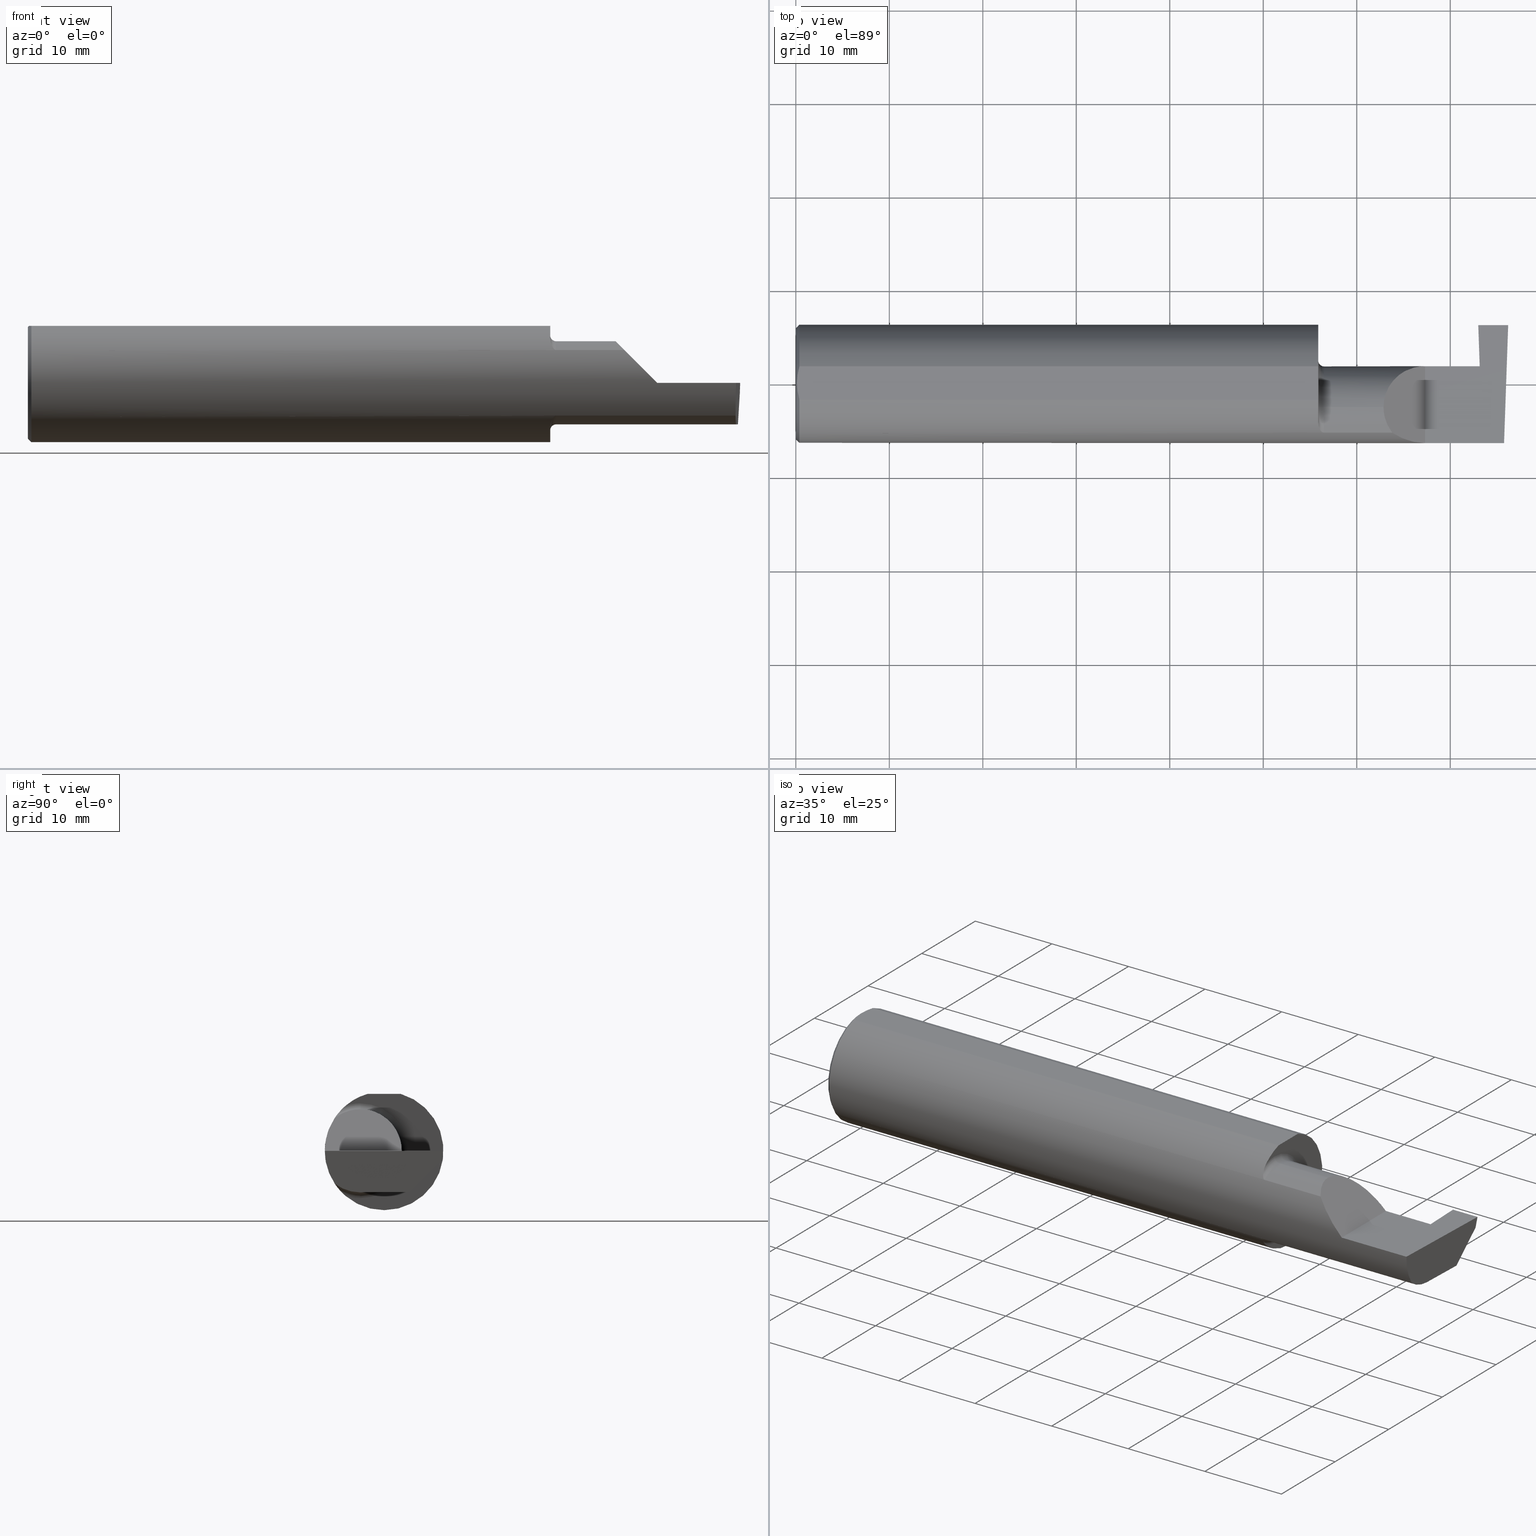
[diagram: canonical four-view strip — front | top / right | iso, engineering-drawing reading convention]
A machine part, canonical four-view strip (front | top / right | iso — engineering-drawing reading convention). The complete STEP part file that produces these views, byte-faithful:
ISO-10303-21;
HEADER;
FILE_DESCRIPTION (( 'STEP AP203' ),
    '1' );
FILE_NAME ('221538-GT125-12.STEP',
    '2024-07-22T22:41:43',
    ( '' ),
    ( '' ),
    'SwSTEP 2.0',
    'SolidWorks 2024',
    '' );
FILE_SCHEMA (( 'CONFIG_CONTROL_DESIGN' ));
ENDSEC;

DATA;
#1 = ORIENTED_EDGE ( 'NONE', *, *, #758, .F. ) ;
#2 = COORDINATED_UNIVERSAL_TIME_OFFSET ( 8, 0, .BEHIND. ) ;
#3 = DIRECTION ( 'NONE',  ( 0.03489949670249940794, 0.9993908270190957621, -4.452728370532699971E-18 ) ) ;
#4 = AXIS2_PLACEMENT_3D ( 'NONE', #427, #6, #507 ) ;
#5 = CIRCLE ( 'NONE', #331, 0.1749999999999999889 ) ;
#6 = DIRECTION ( 'NONE',  ( -1.000000000000000000, -0.000000000000000000, -0.000000000000000000 ) ) ;
#7 = CARTESIAN_POINT ( 'NONE',  ( 2.200000000000000178, -0.1008499999999999674, 0.000000000000000000 ) ) ;
#8 = CARTESIAN_POINT ( 'NONE',  ( 3.000000000000000444, 0.1783256080881261973, -0.1750000000000000444 ) ) ;
#9 = CC_DESIGN_APPROVAL ( #785, ( #349 ) ) ;
#10 = EDGE_CURVE ( 'NONE', #130, #264, #173, .T. ) ;
#11 = CARTESIAN_POINT ( 'NONE',  ( 2.200000000000000178, 0.2741500000000000048, 0.000000000000000000 ) ) ;
#12 = DIRECTION ( 'NONE',  ( -0.000000000000000000, 1.000000000000000000, -0.000000000000000000 ) ) ;
#13 = ORIENTED_EDGE ( 'NONE', *, *, #611, .T. ) ;
#14 = CARTESIAN_POINT ( 'NONE',  ( 2.200000000000000178, -0.1616050818046604332, 0.1905487340154980169 ) ) ;
#15 = CARTESIAN_POINT ( 'NONE',  ( 2.225000000000000089, -0.1008499999999999674, 0.000000000000000000 ) ) ;
#16 = VECTOR ( 'NONE', #733, 39.37007874015748143 ) ;
#17 = ORIENTED_EDGE ( 'NONE', *, *, #133, .F. ) ;
#18 = DIRECTION ( 'NONE',  ( 0.000000000000000000, 0.000000000000000000, 1.000000000000000000 ) ) ;
#19 = EDGE_CURVE ( 'NONE', #341, #55, #82, .T. ) ;
#20 = LINE ( 'NONE', #647, #278 ) ;
#21 = ORIENTED_EDGE ( 'NONE', *, *, #469, .T. ) ;
#22 = CIRCLE ( 'NONE', #766, 0.1999999999999999833 ) ;
#23 = CARTESIAN_POINT ( 'NONE',  ( 2.980602402804240381, -0.2354324170447252007, -0.09714751587401852795 ) ) ;
#24 = CARTESIAN_POINT ( 'NONE',  ( 0.01499999999999999944, 3.059780027669661931E-17, 0.2498499999999999888 ) ) ;
#25 = ORIENTED_EDGE ( 'NONE', *, *, #394, .F. ) ;
#26 =( LENGTH_UNIT ( ) NAMED_UNIT ( * ) SI_UNIT ( $, .METRE. ) );
#27 = CARTESIAN_POINT ( 'NONE',  ( 0.004999999999999471013, 5.665694022114171174E-17, 0.2398500000000000076 ) ) ;
#28 = ORIENTED_EDGE ( 'NONE', *, *, #701, .F. ) ;
#29 = TOROIDAL_SURFACE ( 'NONE', #174, 0.1999999999999999833, 0.02499999999999994241 ) ;
#30 = DIRECTION ( 'NONE',  ( 0.000000000000000000, 0.000000000000000000, 1.000000000000000000 ) ) ;
#31 = DIRECTION ( 'NONE',  ( -1.000000000000000000, -0.000000000000000000, -0.000000000000000000 ) ) ;
#32 = ORIENTED_EDGE ( 'NONE', *, *, #33, .F. ) ;
#33 = EDGE_CURVE ( 'NONE', #100, #606, #793, .T. ) ;
#34 = CARTESIAN_POINT ( 'NONE',  ( 2.885036419112081862, -0.01887343476265496492, -0.1750000000000000444 ) ) ;
#35 = DIRECTION ( 'NONE',  ( 0.000000000000000000, -0.9659258262890680902, 0.2588190451025216832 ) ) ;
#36 = ORIENTED_EDGE ( 'NONE', *, *, #418, .F. ) ;
#37 = CARTESIAN_POINT ( 'NONE',  ( 2.874000000000000110, 0.07414999999999997982, 9.797164290271514876E-17 ) ) ;
#38 = LINE ( 'NONE', #420, #382 ) ;
#39 = ORIENTED_EDGE ( 'NONE', *, *, #680, .F. ) ;
#40 = VECTOR ( 'NONE', #523, 39.37007874015748143 ) ;
#41 = VECTOR ( 'NONE', #3, 39.37007874015748143 ) ;
#42 = DIRECTION ( 'NONE',  ( 0.000000000000000000, -0.7071067811865463515, 0.7071067811865486830 ) ) ;
#43 = DIRECTION ( 'NONE',  ( 0.04426438787458265856, 0.001217521851804606722, -0.9990191097304539358 ) ) ;
#44 = ADVANCED_FACE ( 'NONE', ( #622 ), #192, .F. ) ;
#45 = VERTEX_POINT ( 'NONE', #262 ) ;
#46 = AXIS2_PLACEMENT_3D ( 'NONE', #287, #777, #30 ) ;
#47 = ADVANCED_FACE ( 'NONE', ( #116 ), #320, .F. ) ;
#48 = ORIENTED_EDGE ( 'NONE', *, *, #101, .T. ) ;
#49 = APPLICATION_PROTOCOL_DEFINITION ( 'international standard', 'config_control_design', 1994, #538 ) ;
#50 = CARTESIAN_POINT ( 'NONE',  ( 0.000000000000000000, 0.000000000000000000, 0.000000000000000000 ) ) ;
#51 = PLANE ( 'NONE',  #356 ) ;
#52 = PERSON_AND_ORGANIZATION ( #608, #235 ) ;
#53 = FACE_OUTER_BOUND ( 'NONE', #734, .T. ) ;
#54 = APPLICATION_CONTEXT ( 'configuration controlled 3d designs of mechanical parts and assemblies' ) ;
#55 = VERTEX_POINT ( 'NONE', #431 ) ;
#56 = PERSON_AND_ORGANIZATION ( #608, #235 ) ;
#57 = LINE ( 'NONE', #310, #383 ) ;
#58 = CARTESIAN_POINT ( 'NONE',  ( 2.511704467739034552, -0.2080850024789292485, 0.1382955322609664139 ) ) ;
#59 = CC_DESIGN_APPROVAL ( #223, ( #482 ) ) ;
#60 = ORIENTED_EDGE ( 'NONE', *, *, #584, .F. ) ;
#61 = CARTESIAN_POINT ( 'NONE',  ( 2.876037492458068279, 0.2348243371481683328, -0.04599999999999999922 ) ) ;
#62 = DIRECTION ( 'NONE',  ( 0.06975643500179386225, 0.001215747646129009549, -0.9975633121428941763 ) ) ;
#63 = ORIENTED_EDGE ( 'NONE', *, *, #478, .F. ) ;
#64 = CARTESIAN_POINT ( 'NONE',  ( 2.221700027347579098, -0.2077785947292768720, -0.1387580622202825020 ) ) ;
#65 = VECTOR ( 'NONE', #580, 39.37007874015748854 ) ;
#66 = EDGE_CURVE ( 'NONE', #776, #187, #370, .T. ) ;
#67 = VECTOR ( 'NONE', #80, 39.37007874015748143 ) ;
#68 = ORIENTED_EDGE ( 'NONE', *, *, #274, .F. ) ;
#69 = ORIENTED_EDGE ( 'NONE', *, *, #350, .T. ) ;
#70 = DIRECTION ( 'NONE',  ( 0.000000000000000000, 0.000000000000000000, -1.000000000000000000 ) ) ;
#71 = CARTESIAN_POINT ( 'NONE',  ( 2.873910470583536103, 0.2476916017116004842, 0.002021285105159276521 ) ) ;
#72 = VERTEX_POINT ( 'NONE', #679 ) ;
#73 = VECTOR ( 'NONE', #592, 39.37007874015748143 ) ;
#74 = EDGE_CURVE ( 'NONE', #95, #685, #181, .T. ) ;
#75 = CARTESIAN_POINT ( 'NONE',  ( 2.201849548162864600, -0.1805300287242674051, 0.1728462070311779786 ) ) ;
#76 =( BOUNDED_CURVE ( )  B_SPLINE_CURVE ( 3, ( #731, #175, #315, #556 ),
 .UNSPECIFIED., .F., .T. ) 
 B_SPLINE_CURVE_WITH_KNOTS ( ( 4, 4 ),
 ( 0.000000000000000000, 1.570796326794896558 ),
 .UNSPECIFIED. ) 
 CURVE ( )  GEOMETRIC_REPRESENTATION_ITEM ( )  RATIONAL_B_SPLINE_CURVE ( ( 1.000000000000000000, 0.8047378541243649375, 0.8047378541243649375, 1.000000000000000000 ) ) 
 REPRESENTATION_ITEM ( '' )  );
#77 = LINE ( 'NONE', #573, #289 ) ;
#78 = ORIENTED_EDGE ( 'NONE', *, *, #241, .T. ) ;
#79 = EDGE_CURVE ( 'NONE', #399, #578, #664, .T. ) ;
#80 = DIRECTION ( 'NONE',  ( -1.000000000000000000, -0.000000000000000000, -0.000000000000000000 ) ) ;
#81 = CARTESIAN_POINT ( 'NONE',  ( 0.005899890343961326084, 0.02378560009989246285, 0.2398500000000000076 ) ) ;
#82 = CIRCLE ( 'NONE', #371, 0.1749999999999999889 ) ;
#83 = VECTOR ( 'NONE', #674, 39.37007874015748143 ) ;
#84 = ORIENTED_EDGE ( 'NONE', *, *, #418, .T. ) ;
#85 = PRODUCT_RELATED_PRODUCT_CATEGORY ( 'detail', '', ( #306 ) ) ;
#86 = DIRECTION ( 'NONE',  ( -1.000000000000000000, -0.000000000000000000, -0.000000000000000000 ) ) ;
#87 = PLANE ( 'NONE',  #215 ) ;
#88 = VERTEX_POINT ( 'NONE', #312 ) ;
#89 = CARTESIAN_POINT ( 'NONE',  ( 2.825000000000000178, 0.2471500000000000086, -3.306546357697639493E-19 ) ) ;
#90 = DIRECTION ( 'NONE',  ( 0.000000000000000000, 0.000000000000000000, 1.000000000000000000 ) ) ;
#91 = ORIENTED_EDGE ( 'NONE', *, *, #401, .T. ) ;
#92 = CARTESIAN_POINT ( 'NONE',  ( 2.994767799596354418, 0.2473327124642303587, -0.1999314649951115241 ) ) ;
#93 = ADVANCED_BREP_SHAPE_REPRESENTATION ( '221538-GT125-12', ( #596, #337 ), #179 ) ;
#94 = ADVANCED_FACE ( 'NONE', ( #129 ), #51, .F. ) ;
#95 = VERTEX_POINT ( 'NONE', #626 ) ;
#96 = CARTESIAN_POINT ( 'NONE',  ( 0.000000000000000000, 2.967931517733610643E-17, 0.2348499999999999754 ) ) ;
#97 = FACE_OUTER_BOUND ( 'NONE', #353, .T. ) ;
#98 = VERTEX_POINT ( 'NONE', #253 ) ;
#99 = LINE ( 'NONE', #352, #255 ) ;
#100 = VERTEX_POINT ( 'NONE', #499 ) ;
#101 = EDGE_CURVE ( 'NONE', #233, #325, #105, .T. ) ;
#102 = DIRECTION ( 'NONE',  ( 0.000000000000000000, -1.000000000000000000, 0.000000000000000000 ) ) ;
#103 = PLANE ( 'NONE',  #395 ) ;
#104 = ORIENTED_EDGE ( 'NONE', *, *, #636, .T. ) ;
#105 = CIRCLE ( 'NONE', #4, 0.1999999999999999833 ) ;
#106 = AXIS2_PLACEMENT_3D ( 'NONE', #450, #447, #691 ) ;
#107 = CALENDAR_DATE ( 2024, 22, 7 ) ;
#108 = ADVANCED_FACE ( 'NONE', ( #548 ), #748, .F. ) ;
#109 = CYLINDRICAL_SURFACE ( 'NONE', #689, 0.1749999999999999889 ) ;
#110 = ORIENTED_EDGE ( 'NONE', *, *, #194, .T. ) ;
#111 = APPROVAL_DATE_TIME ( #487, #223 ) ;
#112 = CARTESIAN_POINT ( 'NONE',  ( 2.199999999999998845, -0.1716188362992555061, -0.1820560320165479640 ) ) ;
#113 = DIRECTION ( 'NONE',  ( -1.224646799147351482E-16, 0.000000000000000000, -1.000000000000000000 ) ) ;
#114 = FACE_OUTER_BOUND ( 'NONE', #297, .T. ) ;
#115 = UNCERTAINTY_MEASURE_WITH_UNIT (LENGTH_MEASURE( 1.000000000000000082E-05 ), #354, 'distance_accuracy_value', 'NONE');
#116 = FACE_OUTER_BOUND ( 'NONE', #686, .T. ) ;
#117 = EDGE_CURVE ( 'NONE', #399, #728, #610, .T. ) ;
#118 = EDGE_LOOP ( 'NONE', ( #762, #440, #28, #522, #148 ) ) ;
#119 = CIRCLE ( 'NONE', #678, 0.1749999999999999889 ) ;
#120 = DIRECTION ( 'NONE',  ( 1.870496354609675114E-16, -0.9999992573649233440, -0.001218716374663524494 ) ) ;
#121 = CARTESIAN_POINT ( 'NONE',  ( 2.891482443365339439, -0.2537872052982785287, 1.328956783839287718E-17 ) ) ;
#122 = ORIENTED_EDGE ( 'NONE', *, *, #758, .T. ) ;
#123 = COORDINATED_UNIVERSAL_TIME_OFFSET ( 8, 0, .BEHIND. ) ;
#124 = DIRECTION ( 'NONE',  ( -1.000000000000000000, -0.000000000000000000, -0.000000000000000000 ) ) ;
#125 = CARTESIAN_POINT ( 'NONE',  ( 2.876037492458068723, -2.796095625284332975, -0.04969383453168214893 ) ) ;
#126 = ORIENTED_EDGE ( 'NONE', *, *, #410, .T. ) ;
#127 = EDGE_CURVE ( 'NONE', #463, #95, #389, .T. ) ;
#128 = CARTESIAN_POINT ( 'NONE',  ( 2.223318040126429640, -0.2080850024789290820, -0.1382955322609666915 ) ) ;
#129 = FACE_OUTER_BOUND ( 'NONE', #486, .T. ) ;
#130 = VERTEX_POINT ( 'NONE', #750 ) ;
#131 = CARTESIAN_POINT ( 'NONE',  ( 2.218876997637615034, -0.2068363917296600907, 0.1401586554522229189 ) ) ;
#132 = DIMENSIONAL_EXPONENTS ( 1.000000000000000000, 0.000000000000000000, 0.000000000000000000, 0.000000000000000000, 0.000000000000000000, 0.000000000000000000, 0.000000000000000000 ) ;
#133 = EDGE_CURVE ( 'NONE', #719, #362, #704, .T. ) ;
#134 = AXIS2_PLACEMENT_3D ( 'NONE', #125, #249, #495 ) ;
#135 = VECTOR ( 'NONE', #149, 39.37007874015748854 ) ;
#136 = CARTESIAN_POINT ( 'NONE',  ( 0.009312860630924745670, 0.04712480857212029278, 0.2398500000000000354 ) ) ;
#137 = CARTESIAN_POINT ( 'NONE',  ( 2.200000000000000178, -0.1008499999999999536, -0.1749999999999999889 ) ) ;
#138 = CARTESIAN_POINT ( 'NONE',  ( 2.874000000000000110, -0.1008499999999999674, 0.000000000000000000 ) ) ;
#139 = ORIENTED_EDGE ( 'NONE', *, *, #117, .F. ) ;
#140 = DIRECTION ( 'NONE',  ( 0.000000000000000000, 0.000000000000000000, 1.000000000000000000 ) ) ;
#141 = LINE ( 'NONE', #392, #742 ) ;
#142 = ORIENTED_EDGE ( 'NONE', *, *, #164, .T. ) ;
#143 = CC_DESIGN_PERSON_AND_ORGANIZATION_ASSIGNMENT ( #372, #497, ( #349 ) ) ;
#144 = CARTESIAN_POINT ( 'NONE',  ( 2.206159563508733878, -0.1933019864360849271, 0.1584298865564830183 ) ) ;
#145 = DIRECTION ( 'NONE',  ( 0.000000000000000000, 0.000000000000000000, 1.000000000000000000 ) ) ;
#146 = AXIS2_PLACEMENT_3D ( 'NONE', #347, #171, #763 ) ;
#147 = VECTOR ( 'NONE', #503, 39.37007874015748143 ) ;
#148 = ORIENTED_EDGE ( 'NONE', *, *, #74, .F. ) ;
#149 = DIRECTION ( 'NONE',  ( -0.03489949670249939406, -0.9993908270190957621, 2.445004146800612422E-16 ) ) ;
#150 = FACE_OUTER_BOUND ( 'NONE', #524, .T. ) ;
#151 = EDGE_LOOP ( 'NONE', ( #623, #772, #635 ) ) ;
#152 = AXIS2_PLACEMENT_3D ( 'NONE', #720, #102, #529 ) ;
#153 = CARTESIAN_POINT ( 'NONE',  ( 2.885053225427432810, 0.1783354039560729742, -0.1750000000000000444 ) ) ;
#154 = EDGE_CURVE ( 'NONE', #759, #283, #638, .T. ) ;
#155 = CARTESIAN_POINT ( 'NONE',  ( 2.650000000000000355, -0.2498499999999999610, 4.286263797015727350E-17 ) ) ;
#156 = ORIENTED_EDGE ( 'NONE', *, *, #651, .F. ) ;
#157 = DIRECTION ( 'NONE',  ( 0.000000000000000000, 0.000000000000000000, 1.000000000000000000 ) ) ;
#158 = LINE ( 'NONE', #718, #653 ) ;
#159 = ORIENTED_EDGE ( 'NONE', *, *, #101, .F. ) ;
#160 = AXIS2_PLACEMENT_3D ( 'NONE', #15, #328, #332 ) ;
#161 = DIRECTION ( 'NONE',  ( -1.000000000000000000, -0.000000000000000000, -0.000000000000000000 ) ) ;
#162 = PLANE ( 'NONE',  #303 ) ;
#163 = ORIENTED_EDGE ( 'NONE', *, *, #567, .F. ) ;
#164 = EDGE_CURVE ( 'NONE', #245, #411, #20, .T. ) ;
#165 = CARTESIAN_POINT ( 'NONE',  ( 2.882659707296773011, 0.1742304939701101174, -0.1750000000000000444 ) ) ;
#166 = APPROVAL_PERSON_ORGANIZATION ( #673, #223, #724 ) ;
#167 = CARTESIAN_POINT ( 'NONE',  ( 2.874689495973013820, 0.07413112468343002748, -0.01577237022675150382 ) ) ;
#168 = ORIENTED_EDGE ( 'NONE', *, *, #551, .T. ) ;
#169 = EDGE_CURVE ( 'NONE', #690, #739, #119, .T. ) ;
#170 = CARTESIAN_POINT ( 'NONE',  ( 0.000000000000000000, -0.06997856814768359246, 0.2398500000000000076 ) ) ;
#171 = DIRECTION ( 'NONE',  ( -1.000000000000000000, -0.000000000000000000, -0.000000000000000000 ) ) ;
#172 = ORIENTED_EDGE ( 'NONE', *, *, #535, .F. ) ;
#173 = CIRCLE ( 'NONE', #628, 0.2498499999999999888 ) ;
#174 = AXIS2_PLACEMENT_3D ( 'NONE', #488, #124, #792 ) ;
#175 = CARTESIAN_POINT ( 'NONE',  ( 2.475000000000001421, 0.001662626584708371512, 0.1749999999999999889 ) ) ;
#176 = ORIENTED_EDGE ( 'NONE', *, *, #169, .F. ) ;
#177 = CALENDAR_DATE ( 2024, 22, 7 ) ;
#178 = CARTESIAN_POINT ( 'NONE',  ( 2.876037492458068279, 0.06794054266098323303, -0.04620338416404774079 ) ) ;
#179 =( GEOMETRIC_REPRESENTATION_CONTEXT ( 3 ) GLOBAL_UNCERTAINTY_ASSIGNED_CONTEXT ( ( #115 ) ) GLOBAL_UNIT_ASSIGNED_CONTEXT ( ( #354, #404, #740 ) ) REPRESENTATION_CONTEXT ( 'NONE', 'WORKASPACE' ) );
#180 = ADVANCED_FACE ( 'NONE', ( #336 ), #87, .T. ) ;
#181 = LINE ( 'NONE', #121, #409 ) ;
#182 = ORIENTED_EDGE ( 'NONE', *, *, #505, .T. ) ;
#183 = DATE_AND_TIME ( #735, #363 ) ;
#184 = PRODUCT_DEFINITION_SHAPE ( 'NONE', 'NONE',  #482 ) ;
#185 = CARTESIAN_POINT ( 'NONE',  ( 2.549499999999999655, -0.2080850024789291652, 0.1382955322609665250 ) ) ;
#186 = DIRECTION ( 'NONE',  ( 0.000000000000000000, -1.000000000000000000, 2.446352684939718220E-16 ) ) ;
#187 = VERTEX_POINT ( 'NONE', #688 ) ;
#188 = VECTOR ( 'NONE', #398, 39.37007874015748854 ) ;
#189 = PERSON_AND_ORGANIZATION_ROLE ( 'design_supplier' ) ;
#190 = VECTOR ( 'NONE', #576, 39.37007874015748143 ) ;
#191 = CARTESIAN_POINT ( 'NONE',  ( 2.825000000000000178, 0.2348243371481683328, -0.04599999999999999922 ) ) ;
#192 = PLANE ( 'NONE',  #134 ) ;
#193 = ORIENTED_EDGE ( 'NONE', *, *, #786, .F. ) ;
#194 = EDGE_CURVE ( 'NONE', #728, #690, #445, .T. ) ;
#195 = CARTESIAN_POINT ( 'NONE',  ( 2.887013260303944229, 0.07439359513054549788, -0.1998782938404957410 ) ) ;
#196 =( BOUNDED_CURVE ( )  B_SPLINE_CURVE ( 3, ( #480, #220, #167, #539 ),
 .UNSPECIFIED., .F., .T. ) 
 B_SPLINE_CURVE_WITH_KNOTS ( ( 4, 4 ),
 ( 4.443983221546778495, 4.709965478757016655 ),
 .UNSPECIFIED. ) 
 CURVE ( )  GEOMETRIC_REPRESENTATION_ITEM ( )  RATIONAL_B_SPLINE_CURVE ( ( 1.000000000000000000, 0.9941131374841131185, 0.9941131374841131185, 1.000000000000000000 ) ) 
 REPRESENTATION_ITEM ( '' )  );
#197 = DIRECTION ( 'NONE',  ( -1.000000000000000000, -0.000000000000000000, -0.000000000000000000 ) ) ;
#198 = ORIENTED_EDGE ( 'NONE', *, *, #680, .T. ) ;
#199 = FACE_OUTER_BOUND ( 'NONE', #537, .T. ) ;
#200 = CARTESIAN_POINT ( 'NONE',  ( 0.01180609504125290643, -0.05857511741890331081, 0.2398500000000000076 ) ) ;
#201 = EDGE_LOOP ( 'NONE', ( #39, #159, #644, #313 ) ) ;
#202 = CARTESIAN_POINT ( 'NONE',  ( 2.875913319069796525, 0.2366022684371985318, -0.04422206871096982100 ) ) ;
#203 = CARTESIAN_POINT ( 'NONE',  ( 0.000000000000000000, 0.000000000000000000, 0.000000000000000000 ) ) ;
#204 = ORIENTED_EDGE ( 'NONE', *, *, #651, .T. ) ;
#205 = DIRECTION ( 'NONE',  ( -0.04932528479609450678, 0.7062460676987120101, 0.7062460676987096786 ) ) ;
#206 = EDGE_CURVE ( 'NONE', #656, #283, #346, .T. ) ;
#207 = CARTESIAN_POINT ( 'NONE',  ( 0.000000000000000000, 0.000000000000000000, 0.000000000000000000 ) ) ;
#208 = ORIENTED_EDGE ( 'NONE', *, *, #66, .F. ) ;
#209 = LOCAL_TIME ( 15, 41, 43.00000000000000000, #123 ) ;
#210 = DIRECTION ( 'NONE',  ( -1.000000000000000000, -0.000000000000000000, -0.000000000000000000 ) ) ;
#211 = DIRECTION ( 'NONE',  ( -1.000000000000000000, -0.000000000000000000, -0.000000000000000000 ) ) ;
#212 = ORIENTED_EDGE ( 'NONE', *, *, #74, .T. ) ;
#213 = CARTESIAN_POINT ( 'NONE',  ( 2.221718393013767834, -0.2077830475237241459, 0.1387513848711935949 ) ) ;
#214 = DIRECTION ( 'NONE',  ( 0.000000000000000000, 0.000000000000000000, 1.000000000000000000 ) ) ;
#215 = AXIS2_PLACEMENT_3D ( 'NONE', #462, #634, #456 ) ;
#216 = CIRCLE ( 'NONE', #602, 0.2498499999999999888 ) ;
#217 = ORIENTED_EDGE ( 'NONE', *, *, #335, .T. ) ;
#218 = ADVANCED_FACE ( 'NONE', ( #386 ), #725, .F. ) ;
#219 = DIRECTION ( 'NONE',  ( 1.000000000000000000, 0.000000000000000000, 0.000000000000000000 ) ) ;
#220 = CARTESIAN_POINT ( 'NONE',  ( 2.875372681961405608, 0.07204909126152565790, -0.03119400421533637113 ) ) ;
#221 = ORIENTED_EDGE ( 'NONE', *, *, #33, .T. ) ;
#222 = CARTESIAN_POINT ( 'NONE',  ( 2.885029432995152465, -0.1008500000000000091, -0.1749999999999999889 ) ) ;
#223 = APPROVAL ( #242, 'UNSPECIFIED' ) ;
#224 = DIRECTION ( 'NONE',  ( 0.000000000000000000, 0.000000000000000000, 1.000000000000000000 ) ) ;
#225 = ORIENTED_EDGE ( 'NONE', *, *, #79, .T. ) ;
#226 = FACE_OUTER_BOUND ( 'NONE', #585, .T. ) ;
#227 = DIRECTION ( 'NONE',  ( 1.000000000000000000, 0.000000000000000000, 0.000000000000000000 ) ) ;
#228 = ADVANCED_FACE ( 'NONE', ( #150 ), #339, .T. ) ;
#229 = ORIENTED_EDGE ( 'NONE', *, *, #259, .F. ) ;
#230 = CLOSED_SHELL ( 'NONE', ( #361, #483, #770, #458, #385, #228, #180, #108, #94, #671, #494, #218, #597, #627, #47, #723, #424, #540, #443, #797, #44, #309 ) ) ;
#231 = CARTESIAN_POINT ( 'NONE',  ( 0.01499999999999999944, 0.000000000000000000, 0.000000000000000000 ) ) ;
#232 = CARTESIAN_POINT ( 'NONE',  ( 2.876037492458068279, 0.07420629955631043162, -0.04619574797784884584 ) ) ;
#233 = VERTEX_POINT ( 'NONE', #761 ) ;
#234 = CARTESIAN_POINT ( 'NONE',  ( 2.825000000000000178, 0.2348243371481683328, -0.04599999999999999922 ) ) ;
#235 = ORGANIZATION ( 'UNSPECIFIED', 'UNSPECIFIED', '' ) ;
#236 = LINE ( 'NONE', #663, #600 ) ;
#237 = ORIENTED_EDGE ( 'NONE', *, *, #509, .T. ) ;
#238 = CARTESIAN_POINT ( 'NONE',  ( 2.208176740666626614, -0.1972027065478074437, -0.1535263573771913914 ) ) ;
#239 = ORIENTED_EDGE ( 'NONE', *, *, #707, .F. ) ;
#240 = AXIS2_PLACEMENT_3D ( 'NONE', #296, #658, #530 ) ;
#241 = EDGE_CURVE ( 'NONE', #512, #100, #77, .T. ) ;
#242 = APPROVAL_STATUS ( 'not_yet_approved' ) ;
#243 = CARTESIAN_POINT ( 'NONE',  ( 3.000000000000000444, 0.07436327552395199936, -0.1750000000000000167 ) ) ;
#244 = ORIENTED_EDGE ( 'NONE', *, *, #646, .T. ) ;
#245 = VERTEX_POINT ( 'NONE', #515 ) ;
#246 = APPROVAL_ROLE ( '' ) ;
#247 = DIRECTION ( 'NONE',  ( 1.000000000000000000, 0.000000000000000000, 0.000000000000000000 ) ) ;
#248 = APPROVAL_PERSON_ORGANIZATION ( #555, #316, #681 ) ;
#249 = DIRECTION ( 'NONE',  ( 0.9990198516376381788, -5.394573431702560148E-05, 0.04426435500229557868 ) ) ;
#250 = PERSON_AND_ORGANIZATION ( #608, #235 ) ;
#251 = LINE ( 'NONE', #243, #147 ) ;
#252 = EDGE_CURVE ( 'NONE', #283, #751, #549, .T. ) ;
#253 = CARTESIAN_POINT ( 'NONE',  ( 2.980479240051444378, -0.2080850024789291652, -0.1382955322609665250 ) ) ;
#254 = ORIENTED_EDGE ( 'NONE', *, *, #426, .F. ) ;
#255 = VECTOR ( 'NONE', #465, 39.37007874015748143 ) ;
#256 = PERSON_AND_ORGANIZATION_ROLE ( 'classification_officer' ) ;
#257 = LINE ( 'NONE', #191, #501 ) ;
#258 = ORIENTED_EDGE ( 'NONE', *, *, #591, .T. ) ;
#259 = EDGE_CURVE ( 'NONE', #776, #759, #547, .T. ) ;
#260 = LINE ( 'NONE', #444, #588 ) ;
#261 = APPROVAL_PERSON_ORGANIZATION ( #52, #785, #246 ) ;
#262 = CARTESIAN_POINT ( 'NONE',  ( 2.885029432995152465, -0.1008500000000000091, -0.1749999999999999889 ) ) ;
#263 = CARTESIAN_POINT ( 'NONE',  ( 2.212616400345755796, -0.2024684335577102701, 0.1464246884265637538 ) ) ;
#264 = VERTEX_POINT ( 'NONE', #696 ) ;
#265 = EDGE_CURVE ( 'NONE', #72, #341, #141, .T. ) ;
#266 = CARTESIAN_POINT ( 'NONE',  ( 2.225000000000000089, -0.1008499999999999674, 0.000000000000000000 ) ) ;
#267 = DIRECTION ( 'NONE',  ( -1.860109918781713521E-16, 0.9999992573649232330, 0.001218716374663524060 ) ) ;
#268 = VERTEX_POINT ( 'NONE', #270 ) ;
#269 = B_SPLINE_CURVE_WITH_KNOTS ( 'NONE', 3,
 ( #373, #128, #64, #543, #617, #741, #783, #238, #299, #726, #112, #572 ),
 .UNSPECIFIED., .F., .F.,
 ( 4, 2, 2, 2, 2, 4 ),
 ( 1.964491429041408350E-07, 0.0001260981470478282575, 0.0002519998449527523351, 0.0005038032407626152898, 0.001007410032382341199, 0.002014623615621801908 ),
 .UNSPECIFIED. ) ;
#270 = CARTESIAN_POINT ( 'NONE',  ( 2.990479469570817006, 0.1058243371481679268, -0.1749999999999999889 ) ) ;
#271 = ORIENTED_EDGE ( 'NONE', *, *, #350, .F. ) ;
#272 = LINE ( 'NONE', #137, #668 ) ;
#273 = DIRECTION ( 'NONE',  ( 0.7071067811865473507, 8.659560562354935323E-17, 0.7071067811865476838 ) ) ;
#274 = EDGE_CURVE ( 'NONE', #98, #574, #712, .T. ) ;
#275 = ORIENTED_EDGE ( 'NONE', *, *, #567, .T. ) ;
#276 = DIRECTION ( 'NONE',  ( 0.000000000000000000, 0.000000000000000000, -1.000000000000000000 ) ) ;
#277 = CARTESIAN_POINT ( 'NONE',  ( 0.005880636388018715098, -0.02358947477502551168, 0.2398500000000000354 ) ) ;
#278 = VECTOR ( 'NONE', #699, 39.37007874015748854 ) ;
#279 = VECTOR ( 'NONE', #205, 39.37007874015748143 ) ;
#280 = EDGE_LOOP ( 'NONE', ( #768, #357, #631, #713, #639, #110, #390, #544 ) ) ;
#281 = CARTESIAN_POINT ( 'NONE',  ( 2.876037492458068279, 0.06794054266098323303, -0.04620338416404774079 ) ) ;
#282 = DIRECTION ( 'NONE',  ( 0.000000000000000000, 0.000000000000000000, 1.000000000000000000 ) ) ;
#283 = VERTEX_POINT ( 'NONE', #757 ) ;
#284 = DIRECTION ( 'NONE',  ( 0.000000000000000000, 0.000000000000000000, 1.000000000000000000 ) ) ;
#285 = CARTESIAN_POINT ( 'NONE',  ( 2.511704467739034552, -0.2080850024789292485, 0.1382955322609664139 ) ) ;
#286 = ORIENTED_EDGE ( 'NONE', *, *, #551, .F. ) ;
#287 = CARTESIAN_POINT ( 'NONE',  ( 2.225000000000000089, -0.1008499999999999674, 0.000000000000000000 ) ) ;
#288 = DIRECTION ( 'NONE',  ( 0.000000000000000000, 0.000000000000000000, 1.000000000000000000 ) ) ;
#289 = VECTOR ( 'NONE', #267, 39.37007874015748143 ) ;
#290 = ORIENTED_EDGE ( 'NONE', *, *, #584, .T. ) ;
#291 = AXIS2_PLACEMENT_3D ( 'NONE', #231, #219, #276 ) ;
#292 = CARTESIAN_POINT ( 'NONE',  ( 2.475000000000001421, -0.1008499999999999674, 0.1749999999999999889 ) ) ;
#293 = ORIENTED_EDGE ( 'NONE', *, *, #259, .T. ) ;
#294 = CC_DESIGN_SECURITY_CLASSIFICATION ( #466, ( #349 ) ) ;
#295 = APPROVAL_DATE_TIME ( #183, #785 ) ;
#296 = CARTESIAN_POINT ( 'NONE',  ( 0.01499999999999999944, 0.000000000000000000, 0.000000000000000000 ) ) ;
#297 = EDGE_LOOP ( 'NONE', ( #293, #104 ) ) ;
#298 = EDGE_CURVE ( 'NONE', #481, #685, #38, .T. ) ;
#299 = CARTESIAN_POINT ( 'NONE',  ( 2.206147634408387681, -0.1932733126899461307, -0.1584637047788196584 ) ) ;
#300 = CARTESIAN_POINT ( 'NONE',  ( 2.650000000000000355, -0.2500000000000000555, 4.286263797015727350E-17 ) ) ;
#301 = ORIENTED_EDGE ( 'NONE', *, *, #646, .F. ) ;
#302 = CC_DESIGN_PERSON_AND_ORGANIZATION_ASSIGNMENT ( #729, #616, ( #482 ) ) ;
#303 = AXIS2_PLACEMENT_3D ( 'NONE', #360, #35, #472 ) ;
#304 = DIRECTION ( 'NONE',  ( 1.000000000000000000, 0.000000000000000000, 0.000000000000000000 ) ) ;
#305 = FACE_OUTER_BOUND ( 'NONE', #754, .T. ) ;
#306 = PRODUCT ( '221538-GT125-12', '221538-GT125-12', '', ( #545 ) ) ;
#307 = CARTESIAN_POINT ( 'NONE',  ( 2.200000000000000178, 0.000000000000000000, 0.000000000000000000 ) ) ;
#308 = DATE_TIME_ROLE ( 'classification_date' ) ;
#309 = ADVANCED_FACE ( 'NONE', ( #771 ), #103, .F. ) ;
#310 = CARTESIAN_POINT ( 'NONE',  ( 2.549499999999999655, -0.2080850024789291652, -0.1382955322609665250 ) ) ;
#311 = VECTOR ( 'NONE', #714, 39.37007874015748854 ) ;
#312 = CARTESIAN_POINT ( 'NONE',  ( 2.200000000000000178, -0.1008499999999999536, -0.1999999999999999833 ) ) ;
#313 = ORIENTED_EDGE ( 'NONE', *, *, #707, .T. ) ;
#314 = PERSON_AND_ORGANIZATION ( #608, #235 ) ;
#315 = CARTESIAN_POINT ( 'NONE',  ( 2.547487373415292744, 0.07414999999999996594, 0.1025126265847083745 ) ) ;
#316 = APPROVAL ( #795, 'UNSPECIFIED' ) ;
#317 = CARTESIAN_POINT ( 'NONE',  ( 2.600434159100403875, -0.2498499999999999055, 0.04956584089959691769 ) ) ;
#318 = AXIS2_PLACEMENT_3D ( 'NONE', #334, #210, #140 ) ;
#319 = PLANE ( 'NONE',  #727 ) ;
#320 = PLANE ( 'NONE',  #533 ) ;
#321 = ORIENTED_EDGE ( 'NONE', *, *, #535, .T. ) ;
#322 = CARTESIAN_POINT ( 'NONE',  ( 2.993019781838999194, 0.1785693626775286258, -0.1750000000000000444 ) ) ;
#323 = AXIS2_PLACEMENT_3D ( 'NONE', #234, #42, #345 ) ;
#324 = CARTESIAN_POINT ( 'NONE',  ( 2.999793790066964672, 0.2455961323656265238, -0.005799112959718751882 ) ) ;
#325 = VERTEX_POINT ( 'NONE', #721 ) ;
#326 = EDGE_CURVE ( 'NONE', #512, #739, #196, .T. ) ;
#327 = DIRECTION ( 'NONE',  ( 0.000000000000000000, 0.000000000000000000, 1.000000000000000000 ) ) ;
#328 = DIRECTION ( 'NONE',  ( -1.000000000000000000, -0.000000000000000000, -0.000000000000000000 ) ) ;
#329 = ORIENTED_EDGE ( 'NONE', *, *, #636, .F. ) ;
#330 = CARTESIAN_POINT ( 'NONE',  ( 2.225000000000000089, -0.2080850024789291375, -0.1382955322609665805 ) ) ;
#331 = AXIS2_PLACEMENT_3D ( 'NONE', #266, #396, #18 ) ;
#332 = DIRECTION ( 'NONE',  ( 0.000000000000000000, 0.000000000000000000, 1.000000000000000000 ) ) ;
#333 = ORIENTED_EDGE ( 'NONE', *, *, #518, .F. ) ;
#334 = CARTESIAN_POINT ( 'NONE',  ( 0.000000000000000000, 0.000000000000000000, 0.000000000000000000 ) ) ;
#335 = EDGE_CURVE ( 'NONE', #88, #55, #459, .T. ) ;
#336 = FACE_OUTER_BOUND ( 'NONE', #417, .T. ) ;
#337 = AXIS2_PLACEMENT_3D ( 'NONE', #787, #433, #304 ) ;
#338 = EDGE_LOOP ( 'NONE', ( #563, #387, #581, #48, #69, #122 ) ) ;
#339 = CYLINDRICAL_SURFACE ( 'NONE', #640, 0.2498499999999999888 ) ;
#340 = EDGE_CURVE ( 'NONE', #739, #100, #589, .T. ) ;
#341 = VERTEX_POINT ( 'NONE', #715 ) ;
#342 = CARTESIAN_POINT ( 'NONE',  ( 2.881564601548835647, 0.04629714416892564965, -0.1252712066320194051 ) ) ;
#343 = CARTESIAN_POINT ( 'NONE',  ( 2.998364291748493393, 0.2348243371481683328, -0.04599999999999999922 ) ) ;
#344 = EDGE_LOOP ( 'NONE', ( #32, #467, #176, #254, #684, #697 ) ) ;
#345 = DIRECTION ( 'NONE',  ( 0.000000000000000000, -0.7071067811865486830, -0.7071067811865463515 ) ) ;
#346 = B_SPLINE_CURVE_WITH_KNOTS ( 'NONE', 3,
 ( #521, #577, #136, #81, #402, #570 ),
 .UNSPECIFIED., .F., .F.,
 ( 4, 2, 4 ),
 ( 0.006064768674679249863, 0.006954995897674296282, 0.007845223120669342701 ),
 .UNSPECIFIED. ) ;
#347 = CARTESIAN_POINT ( 'NONE',  ( 0.01499999999999999944, 0.000000000000000000, 0.000000000000000000 ) ) ;
#348 = ORIENTED_EDGE ( 'NONE', *, *, #66, .T. ) ;
#349 = PRODUCT_DEFINITION_FORMATION_WITH_SPECIFIED_SOURCE ( 'ANY', '', #306, .NOT_KNOWN. ) ;
#350 = EDGE_CURVE ( 'NONE', #325, #88, #562, .T. ) ;
#351 = PLANE ( 'NONE',  #607 ) ;
#352 = CARTESIAN_POINT ( 'NONE',  ( 3.000000000000000444, 0.07414999999999991043, 7.431225809576783727E-33 ) ) ;
#353 = EDGE_LOOP ( 'NONE', ( #700, #496, #406, #614 ) ) ;
#354 =( CONVERSION_BASED_UNIT ( 'INCH', #774 ) LENGTH_UNIT ( ) NAMED_UNIT ( #132 ) );
#355 = CARTESIAN_POINT ( 'NONE',  ( 2.225000000000000089, -0.2080850024789292485, 0.1382955322609664972 ) ) ;
#356 = AXIS2_PLACEMENT_3D ( 'NONE', #442, #683, #378 ) ;
#357 = ORIENTED_EDGE ( 'NONE', *, *, #625, .T. ) ;
#358 = VECTOR ( 'NONE', #434, 39.37007874015748143 ) ;
#359 = SHAPE_DEFINITION_REPRESENTATION ( #184, #93 ) ;
#360 = CARTESIAN_POINT ( 'NONE',  ( 2.825000000000000178, 0.2471500000000000086, -3.306546357697639493E-19 ) ) ;
#361 = ADVANCED_FACE ( 'NONE', ( #767 ), #109, .T. ) ;
#362 = VERTEX_POINT ( 'NONE', #343 ) ;
#363 = LOCAL_TIME ( 15, 41, 43.00000000000000000, #492 ) ;
#364 = COORDINATED_UNIVERSAL_TIME_OFFSET ( 8, 0, .BEHIND. ) ;
#365 = DIRECTION ( 'NONE',  ( 0.03492071764873293238, 0.000000000000000000, -0.9993900857417474803 ) ) ;
#366 = DIRECTION ( 'NONE',  ( -1.000000000000000000, 0.000000000000000000, 1.224646799147351482E-16 ) ) ;
#367 = CC_DESIGN_PERSON_AND_ORGANIZATION_ASSIGNMENT ( #250, #429, ( #306 ) ) ;
#368 = DATE_AND_TIME ( #177, #594 ) ;
#369 = CARTESIAN_POINT ( 'NONE',  ( 2.200000000000000178, 0.000000000000000000, 0.000000000000000000 ) ) ;
#370 = LINE ( 'NONE', #435, #16 ) ;
#371 = AXIS2_PLACEMENT_3D ( 'NONE', #561, #197, #566 ) ;
#372 = PERSON_AND_ORGANIZATION ( #608, #235 ) ;
#373 = CARTESIAN_POINT ( 'NONE',  ( 2.225000000000000089, -0.2080850024789291375, -0.1382955322609665805 ) ) ;
#374 = ORIENTED_EDGE ( 'NONE', *, *, #692, .T. ) ;
#375 = APPROVAL_DATE_TIME ( #782, #316 ) ;
#376 = DIRECTION ( 'NONE',  ( -1.000000000000000000, -0.000000000000000000, -0.000000000000000000 ) ) ;
#377 = CC_DESIGN_APPROVAL ( #316, ( #466 ) ) ;
#378 = DIRECTION ( 'NONE',  ( -0.7071067811865454633, 0.000000000000000000, 0.7071067811865495711 ) ) ;
#379 = VERTEX_POINT ( 'NONE', #355 ) ;
#380 = PLANE ( 'NONE',  #397 ) ;
#381 = CARTESIAN_POINT ( 'NONE',  ( 2.650000000000000355, -0.2498499999999999610, 4.286263797015727350E-17 ) ) ;
#382 = VECTOR ( 'NONE', #476, 39.37007874015748854 ) ;
#383 = VECTOR ( 'NONE', #376, 39.37007874015748143 ) ;
#384 = CARTESIAN_POINT ( 'NONE',  ( 2.885044364828742047, 0.07436327552395198548, -0.1750000000000000167 ) ) ;
#385 = ADVANCED_FACE ( 'NONE', ( #655 ), #586, .T. ) ;
#386 = FACE_OUTER_BOUND ( 'NONE', #201, .T. ) ;
#387 = ORIENTED_EDGE ( 'NONE', *, *, #401, .F. ) ;
#388 = FACE_OUTER_BOUND ( 'NONE', #474, .T. ) ;
#389 = LINE ( 'NONE', #71, #65 ) ;
#390 = ORIENTED_EDGE ( 'NONE', *, *, #169, .T. ) ;
#391 = LINE ( 'NONE', #579, #67 ) ;
#392 = CARTESIAN_POINT ( 'NONE',  ( 2.200000000000000178, -0.1008499999999999674, 0.1749999999999999889 ) ) ;
#393 = ORIENTED_EDGE ( 'NONE', *, *, #542, .T. ) ;
#394 = EDGE_CURVE ( 'NONE', #187, #751, #500, .T. ) ;
#395 = AXIS2_PLACEMENT_3D ( 'NONE', #92, #667, #605 ) ;
#396 = DIRECTION ( 'NONE',  ( -1.000000000000000000, -0.000000000000000000, -0.000000000000000000 ) ) ;
#397 = AXIS2_PLACEMENT_3D ( 'NONE', #50, #682, #670 ) ;
#398 = DIRECTION ( 'NONE',  ( -0.03432699337968036363, -0.2586665114180216052, -0.9653565628286482347 ) ) ;
#399 = VERTEX_POINT ( 'NONE', #155 ) ;
#400 = CARTESIAN_POINT ( 'NONE',  ( 2.200000000000000178, -0.1665641037263010105, 0.1863429692936361681 ) ) ;
#401 = EDGE_CURVE ( 'NONE', #477, #264, #158, .T. ) ;
#402 = CARTESIAN_POINT ( 'NONE',  ( 0.004999999999999748569, 0.01185123536186985863, 0.2398500000000000354 ) ) ;
#403 = EDGE_LOOP ( 'NONE', ( #237, #290, #36, #258 ) ) ;
#404 =( NAMED_UNIT ( * ) PLANE_ANGLE_UNIT ( ) SI_UNIT ( $, .RADIAN. ) );
#405 = FACE_OUTER_BOUND ( 'NONE', #118, .T. ) ;
#406 = ORIENTED_EDGE ( 'NONE', *, *, #509, .F. ) ;
#407 = LINE ( 'NONE', #89, #73 ) ;
#408 = CARTESIAN_POINT ( 'NONE',  ( 2.475000000000001421, -0.1400387324517231857, 0.1750000000000000167 ) ) ;
#409 = VECTOR ( 'NONE', #738, 39.37007874015748854 ) ;
#410 = EDGE_CURVE ( 'NONE', #578, #72, #791, .T. ) ;
#411 = VERTEX_POINT ( 'NONE', #778 ) ;
#412 = LINE ( 'NONE', #165, #311 ) ;
#413 = DIRECTION ( 'NONE',  ( -0.000000000000000000, 1.000000000000000000, 1.224646799147353207E-16 ) ) ;
#414 = ORIENTED_EDGE ( 'NONE', *, *, #164, .F. ) ;
#415 = CARTESIAN_POINT ( 'NONE',  ( 2.885047045968829327, -2.795938602588532884, -0.1785364286363248232 ) ) ;
#416 = CARTESIAN_POINT ( 'NONE',  ( 2.980931506555613453, -0.1771157075472509779, -0.1623092683844330475 ) ) ;
#417 = EDGE_LOOP ( 'NONE', ( #603, #91, #244, #541, #454 ) ) ;
#418 = EDGE_CURVE ( 'NONE', #595, #268, #236, .T. ) ;
#419 = DIRECTION ( 'NONE',  ( -1.000000000000000000, -0.000000000000000000, -0.000000000000000000 ) ) ;
#420 = CARTESIAN_POINT ( 'NONE',  ( 2.887013260303944229, 0.07439359513054549788, -0.1998782938404957410 ) ) ;
#421 = ORIENTED_EDGE ( 'NONE', *, *, #79, .F. ) ;
#422 = CIRCLE ( 'NONE', #318, 0.2348499999999999754 ) ;
#423 = CALENDAR_DATE ( 2024, 22, 7 ) ;
#424 = ADVANCED_FACE ( 'NONE', ( #97 ), #162, .F. ) ;
#425 = CARTESIAN_POINT ( 'NONE',  ( 2.886145020370094016, 0.07436327552395197160, -0.1750000000000000167 ) ) ;
#426 = EDGE_CURVE ( 'NONE', #685, #690, #99, .T. ) ;
#427 = CARTESIAN_POINT ( 'NONE',  ( 2.200000000000000178, -0.1008499999999999674, 0.000000000000000000 ) ) ;
#428 = CIRCLE ( 'NONE', #46, 0.1749999999999999889 ) ;
#429 = PERSON_AND_ORGANIZATION_ROLE ( 'design_owner' ) ;
#430 = CARTESIAN_POINT ( 'NONE',  ( 2.200000000000000178, -0.06997856814768374512, 0.2398500000000000076 ) ) ;
#431 = CARTESIAN_POINT ( 'NONE',  ( 2.225000000000000089, -0.1008499999999999536, -0.1749999999999999889 ) ) ;
#432 = ORIENTED_EDGE ( 'NONE', *, *, #117, .T. ) ;
#433 = DIRECTION ( 'NONE',  ( 0.000000000000000000, 0.000000000000000000, 1.000000000000000000 ) ) ;
#434 = DIRECTION ( 'NONE',  ( 1.000000000000000000, 0.000000000000000000, 0.000000000000000000 ) ) ;
#435 = CARTESIAN_POINT ( 'NONE',  ( 0.01499999999999999944, 0.000000000000000000, -0.2498499999999999888 ) ) ;
#436 = AXIS2_PLACEMENT_3D ( 'NONE', #672, #113, #366 ) ;
#437 = CIRCLE ( 'NONE', #152, 0.02499999999999993894 ) ;
#438 = DATE_AND_TIME ( #423, #794 ) ;
#439 = DIRECTION ( 'NONE',  ( 0.000000000000000000, 0.000000000000000000, -1.000000000000000000 ) ) ;
#440 = ORIENTED_EDGE ( 'NONE', *, *, #591, .F. ) ;
#441 = DIRECTION ( 'NONE',  ( 0.000000000000000000, 0.001218716374663524277, -0.9999992573649232330 ) ) ;
#442 = CARTESIAN_POINT ( 'NONE',  ( 2.650000000000000355, -0.2500000000000000555, 4.286263797015727350E-17 ) ) ;
#443 = ADVANCED_FACE ( 'NONE', ( #405 ), #650, .F. ) ;
#444 = CARTESIAN_POINT ( 'NONE',  ( 2.998041052908566595, 0.2295359730721147906, -0.05128836407605352060 ) ) ;
#445 = LINE ( 'NONE', #448, #40 ) ;
#446 = VECTOR ( 'NONE', #273, 39.37007874015748143 ) ;
#447 = DIRECTION ( 'NONE',  ( -1.000000000000000000, -0.000000000000000000, -0.000000000000000000 ) ) ;
#448 = CARTESIAN_POINT ( 'NONE',  ( 2.200000000000000178, 0.07414999999999997982, 9.797174393178811359E-17 ) ) ;
#449 = ORIENTED_EDGE ( 'NONE', *, *, #542, .F. ) ;
#450 = CARTESIAN_POINT ( 'NONE',  ( 0.01499999999999999944, 0.000000000000000000, 0.000000000000000000 ) ) ;
#451 = VECTOR ( 'NONE', #769, 39.37007874015748854 ) ;
#452 = DIRECTION ( 'NONE',  ( -1.000000000000000000, -0.000000000000000000, -0.000000000000000000 ) ) ;
#453 = EDGE_CURVE ( 'NONE', #574, #45, #736, .T. ) ;
#454 = ORIENTED_EDGE ( 'NONE', *, *, #252, .T. ) ;
#455 = CARTESIAN_POINT ( 'NONE',  ( 2.980479240051444378, -0.2080850024789291652, -0.1382955322609665250 ) ) ;
#456 = DIRECTION ( 'NONE',  ( 1.000000000000000000, 0.000000000000000000, -0.000000000000000000 ) ) ;
#457 = ORIENTED_EDGE ( 'NONE', *, *, #560, .F. ) ;
#458 = ADVANCED_FACE ( 'NONE', ( #53 ), #29, .F. ) ;
#459 = CIRCLE ( 'NONE', #788, 0.02499999999999993894 ) ;
#460 = CARTESIAN_POINT ( 'NONE',  ( 2.885047045968828883, 0.1058243371481679823, -0.1749999999999999334 ) ) ;
#461 = CIRCLE ( 'NONE', #106, 0.2498499999999999888 ) ;
#462 = CARTESIAN_POINT ( 'NONE',  ( 3.000000000000000444, -0.2498499999999999888, 0.2398500000000000076 ) ) ;
#463 = VERTEX_POINT ( 'NONE', #61 ) ;
#464 = FACE_OUTER_BOUND ( 'NONE', #675, .T. ) ;
#465 = DIRECTION ( 'NONE',  ( -1.000000000000000000, -1.871990241922592797E-16, 1.224646799147351482E-16 ) ) ;
#466 = SECURITY_CLASSIFICATION ( '', '', #619 ) ;
#467 = ORIENTED_EDGE ( 'NONE', *, *, #340, .F. ) ;
#468 = LINE ( 'NONE', #170, #632 ) ;
#469 = EDGE_CURVE ( 'NONE', #98, #648, #57, .T. ) ;
#470 = ORIENTED_EDGE ( 'NONE', *, *, #737, .F. ) ;
#471 = DIRECTION ( 'NONE',  ( 0.9975640529689512315, -8.501330957465244652E-05, 0.06975638319821841904 ) ) ;
#472 = DIRECTION ( 'NONE',  ( 0.000000000000000000, -0.2588190451025216277, -0.9659258262890679791 ) ) ;
#473 = VECTOR ( 'NONE', #12, 39.37007874015748143 ) ;
#474 = EDGE_LOOP ( 'NONE', ( #669, #790, #68, #21, #660 ) ) ;
#475 = DIRECTION ( 'NONE',  ( 1.000000000000000000, 0.000000000000000000, 0.000000000000000000 ) ) ;
#476 = DIRECTION ( 'NONE',  ( -0.03487823687206274836, -0.001217974870087560951, 0.9993908270190957621 ) ) ;
#477 = VERTEX_POINT ( 'NONE', #430 ) ;
#478 = EDGE_CURVE ( 'NONE', #72, #728, #76, .T. ) ;
#479 = CARTESIAN_POINT ( 'NONE',  ( 2.225000000000000089, -0.1008499999999999674, 0.000000000000000000 ) ) ;
#480 = CARTESIAN_POINT ( 'NONE',  ( 2.876037492458068279, 0.06794054266098323303, -0.04620338416404774079 ) ) ;
#481 = VERTEX_POINT ( 'NONE', #425 ) ;
#482 = PRODUCT_DEFINITION ( 'UNKNOWN', '', #349, #677 ) ;
#483 = ADVANCED_FACE ( 'NONE', ( #305 ), #609, .T. ) ;
#484 = DIRECTION ( 'NONE',  ( 0.000000000000000000, 0.000000000000000000, 1.000000000000000000 ) ) ;
#485 = VECTOR ( 'NONE', #43, 39.37007874015748854 ) ;
#486 = EDGE_LOOP ( 'NONE', ( #652, #421, #432, #63 ) ) ;
#487 = DATE_AND_TIME ( #107, #491 ) ;
#488 = CARTESIAN_POINT ( 'NONE',  ( 2.225000000000000089, -0.1008499999999999674, 0.000000000000000000 ) ) ;
#489 = ORIENTED_EDGE ( 'NONE', *, *, #274, .T. ) ;
#490 = ORIENTED_EDGE ( 'NONE', *, *, #154, .T. ) ;
#491 = LOCAL_TIME ( 15, 41, 43.00000000000000000, #558 ) ;
#492 = COORDINATED_UNIVERSAL_TIME_OFFSET ( 8, 0, .BEHIND. ) ;
#493 = LINE ( 'NONE', #185, #358 ) ;
#494 = ADVANCED_FACE ( 'NONE', ( #114 ), #380, .F. ) ;
#495 = DIRECTION ( 'NONE',  ( 0.04426435506670335640, 0.000000000000000000, -0.9990198530912830499 ) ) ;
#496 = ORIENTED_EDGE ( 'NONE', *, *, #133, .T. ) ;
#497 = PERSON_AND_ORGANIZATION_ROLE ( 'creator' ) ;
#498 = PLANE ( 'NONE',  #641 ) ;
#499 = CARTESIAN_POINT ( 'NONE',  ( 2.876037492458068279, 0.07420629955631044550, -0.04619574797784882503 ) ) ;
#500 = CIRCLE ( 'NONE', #146, 0.2498499999999999888 ) ;
#501 = VECTOR ( 'NONE', #676, 39.37007874015748143 ) ;
#502 = APPLICATION_PROTOCOL_DEFINITION ( 'international standard', 'config_control_design', 1994, #54 ) ;
#503 = DIRECTION ( 'NONE',  ( 1.000000000000000000, 1.870497743706911121E-16, -4.575890381050107109E-32 ) ) ;
#504 = ORIENTED_EDGE ( 'NONE', *, *, #620, .F. ) ;
#505 = EDGE_CURVE ( 'NONE', #411, #719, #796, .T. ) ;
#506 = CARTESIAN_POINT ( 'NONE',  ( 2.982632426700501327, -0.2498495826666993214, -0.0004566631977848650934 ) ) ;
#507 = DIRECTION ( 'NONE',  ( 0.000000000000000000, 0.000000000000000000, 1.000000000000000000 ) ) ;
#508 = ORIENTED_EDGE ( 'NONE', *, *, #426, .T. ) ;
#509 = EDGE_CURVE ( 'NONE', #463, #362, #257, .T. ) ;
#510 = CARTESIAN_POINT ( 'NONE',  ( 2.214343523383978773, -0.2041337200786084161, 0.1440846171672511278 ) ) ;
#511 = CARTESIAN_POINT ( 'NONE',  ( 0.009274236576542579241, -0.04692405468904849164, 0.2398500000000000354 ) ) ;
#512 = VERTEX_POINT ( 'NONE', #178 ) ;
#513 = VECTOR ( 'NONE', #62, 39.37007874015748854 ) ;
#514 = CARTESIAN_POINT ( 'NONE',  ( 2.208182335268384033, -0.1972192205116131414, 0.1535061413537209263 ) ) ;
#515 = CARTESIAN_POINT ( 'NONE',  ( 2.982632426700501327, -0.2498495826666993214, -0.0004566631977848650934 ) ) ;
#516 = EDGE_LOOP ( 'NONE', ( #489, #286, #60, #17, #528, #414, #156 ) ) ;
#517 = CARTESIAN_POINT ( 'NONE',  ( 4.499279347985559139E-32, -0.2498499999999999610, 3.673940397442053459E-16 ) ) ;
#518 = EDGE_CURVE ( 'NONE', #477, #233, #216, .T. ) ;
#519 = ORIENTED_EDGE ( 'NONE', *, *, #525, .T. ) ;
#520 = CARTESIAN_POINT ( 'NONE',  ( 2.981341028891337785, -0.2497592792593325561, -0.04986346618389873170 ) ) ;
#521 = CARTESIAN_POINT ( 'NONE',  ( 0.01499999999999998036, 0.06997856814768359246, 0.2398500000000000076 ) ) ;
#522 = ORIENTED_EDGE ( 'NONE', *, *, #298, .T. ) ;
#523 = DIRECTION ( 'NONE',  ( 1.000000000000000000, 0.000000000000000000, 0.000000000000000000 ) ) ;
#524 = EDGE_LOOP ( 'NONE', ( #142, #275, #225, #172, #457, #333, #470, #25, #504, #301, #716, #449, #531, #204 ) ) ;
#525 = EDGE_CURVE ( 'NONE', #606, #481, #251, .T. ) ;
#526 = CARTESIAN_POINT ( 'NONE',  ( 3.000000000000000444, 0.2471499999999999531, -7.549931466865102584E-16 ) ) ;
#527 = CARTESIAN_POINT ( 'NONE',  ( 2.200000000000000178, -0.1008499999999999674, 0.000000000000000000 ) ) ;
#528 = ORIENTED_EDGE ( 'NONE', *, *, #505, .F. ) ;
#529 = DIRECTION ( 'NONE',  ( 0.000000000000000000, 0.000000000000000000, -1.000000000000000000 ) ) ;
#530 = DIRECTION ( 'NONE',  ( 0.000000000000000000, 0.000000000000000000, -1.000000000000000000 ) ) ;
#531 = ORIENTED_EDGE ( 'NONE', *, *, #469, .F. ) ;
#532 = CARTESIAN_POINT ( 'NONE',  ( 2.650000000000000355, 0.07414999999999997982, 4.286263797015727350E-17 ) ) ;
#533 = AXIS2_PLACEMENT_3D ( 'NONE', #8, #618, #186 ) ;
#534 = CARTESIAN_POINT ( 'NONE',  ( 2.225000000000000089, -0.1008499999999999536, -0.1999999999999999833 ) ) ;
#535 = EDGE_CURVE ( 'NONE', #379, #578, #493, .T. ) ;
#536 = CONICAL_SURFACE ( 'NONE', #291, 0.2498499999999999888, 0.7853981633974485010 ) ;
#537 = EDGE_LOOP ( 'NONE', ( #615, #229, #348, #599, #764 ) ) ;
#538 = APPLICATION_CONTEXT ( 'configuration controlled 3d designs of mechanical parts and assemblies' ) ;
#539 = CARTESIAN_POINT ( 'NONE',  ( 2.874000000000000110, 0.07414987299205305638, -0.0002108382441793307837 ) ) ;
#540 = ADVANCED_FACE ( 'NONE', ( #746 ), #498, .F. ) ;
#541 = ORIENTED_EDGE ( 'NONE', *, *, #206, .T. ) ;
#542 = EDGE_CURVE ( 'NONE', #648, #130, #269, .T. ) ;
#543 = CARTESIAN_POINT ( 'NONE',  ( 2.218863362722770294, -0.2068301641248771472, -0.1401678546132359982 ) ) ;
#544 = ORIENTED_EDGE ( 'NONE', *, *, #326, .F. ) ;
#545 = MECHANICAL_CONTEXT ( 'NONE', #54, 'mechanical' ) ;
#546 = DIRECTION ( 'NONE',  ( -1.000000000000000000, -0.000000000000000000, -0.000000000000000000 ) ) ;
#547 = CIRCLE ( 'NONE', #666, 0.2348499999999999754 ) ;
#548 = FACE_OUTER_BOUND ( 'NONE', #722, .T. ) ;
#549 = B_SPLINE_CURVE_WITH_KNOTS ( 'NONE', 3,
 ( #27, #753, #277, #511, #200, #630 ),
 .UNSPECIFIED., .F., .F.,
 ( 4, 2, 4 ),
 ( 0.007845223120669342701, 0.008734561288375080820, 0.009623899456080818940 ),
 .UNSPECIFIED. ) ;
#550 = ORIENTED_EDGE ( 'NONE', *, *, #781, .T. ) ;
#551 = EDGE_CURVE ( 'NONE', #268, #574, #687, .T. ) ;
#552 = APPROVAL_STATUS ( 'not_yet_approved' ) ;
#553 = DIRECTION ( 'NONE',  ( 0.9987827668610290699, 0.03485699000042882800, 0.03489949669461413218 ) ) ;
#554 = CARTESIAN_POINT ( 'NONE',  ( 2.885047045968828883, 0.07436332225211045310, -0.1750383420824915270 ) ) ;
#555 = PERSON_AND_ORGANIZATION ( #608, #235 ) ;
#556 = CARTESIAN_POINT ( 'NONE',  ( 2.650000000000000355, 0.07414999999999997982, 4.286263797015727350E-17 ) ) ;
#557 = DIRECTION ( 'NONE',  ( 1.000000000000000000, 0.000000000000000000, 0.000000000000000000 ) ) ;
#558 = COORDINATED_UNIVERSAL_TIME_OFFSET ( 8, 0, .BEHIND. ) ;
#559 = CARTESIAN_POINT ( 'NONE',  ( 2.200000000000000178, -0.1008499999999999674, 0.000000000000000000 ) ) ;
#560 = EDGE_CURVE ( 'NONE', #233, #379, #773, .T. ) ;
#561 = CARTESIAN_POINT ( 'NONE',  ( 2.225000000000000089, -0.1008499999999999674, 0.000000000000000000 ) ) ;
#562 = CIRCLE ( 'NONE', #613, 0.1999999999999999833 ) ;
#563 = ORIENTED_EDGE ( 'NONE', *, *, #10, .T. ) ;
#564 = AXIS2_PLACEMENT_3D ( 'NONE', #7, #86, #327 ) ;
#565 = CARTESIAN_POINT ( 'NONE',  ( 2.223329956043142541, -0.2080850024798589770, 0.1382955322595675884 ) ) ;
#566 = DIRECTION ( 'NONE',  ( 0.000000000000000000, 0.000000000000000000, 1.000000000000000000 ) ) ;
#567 = EDGE_CURVE ( 'NONE', #411, #399, #756, .T. ) ;
#568 = ORIENTED_EDGE ( 'NONE', *, *, #194, .F. ) ;
#569 = CARTESIAN_POINT ( 'NONE',  ( 2.225000000000000089, -0.2080850024789292485, 0.1382955322609664972 ) ) ;
#570 = CARTESIAN_POINT ( 'NONE',  ( 0.004999999999999471013, 5.665694022114171174E-17, 0.2398500000000000076 ) ) ;
#571 = ORIENTED_EDGE ( 'NONE', *, *, #19, .T. ) ;
#572 = CARTESIAN_POINT ( 'NONE',  ( 2.200000000000000178, -0.1616050818046604332, -0.1905487340154980169 ) ) ;
#573 = CARTESIAN_POINT ( 'NONE',  ( 2.876037492458068723, -2.796095625284332975, -0.04969383453168214893 ) ) ;
#574 = VERTEX_POINT ( 'NONE', #637 ) ;
#575 =( BOUNDED_CURVE ( )  B_SPLINE_CURVE ( 3, ( #455, #23, #520, #506 ),
 .UNSPECIFIED., .F., .T. ) 
 B_SPLINE_CURVE_WITH_KNOTS ( ( 4, 4 ),
 ( 0.05713034791898981279, 0.6418805321921904339 ),
 .UNSPECIFIED. ) 
 CURVE ( )  GEOMETRIC_REPRESENTATION_ITEM ( )  RATIONAL_B_SPLINE_CURVE ( ( 1.000000000000000000, 0.9717080070095597266, 0.9717080070095597266, 1.000000000000000000 ) ) 
 REPRESENTATION_ITEM ( '' )  );
#576 = DIRECTION ( 'NONE',  ( -1.000000000000000000, -0.000000000000000000, -0.000000000000000000 ) ) ;
#577 = CARTESIAN_POINT ( 'NONE',  ( 0.01181966702888963446, 0.05862357455657472849, 0.2398500000000000631 ) ) ;
#578 = VERTEX_POINT ( 'NONE', #760 ) ;
#579 = CARTESIAN_POINT ( 'NONE',  ( 0.000000000000000000, 0.06997856814768359246, 0.2398500000000000076 ) ) ;
#580 = DIRECTION ( 'NONE',  ( -0.04274495231316564892, 0.2585824888546562894, 0.9650429863531866381 ) ) ;
#581 = ORIENTED_EDGE ( 'NONE', *, *, #518, .T. ) ;
#582 = CARTESIAN_POINT ( 'NONE',  ( 0.000000000000000000, 0.000000000000000000, -0.2348499999999999754 ) ) ;
#583 = DIRECTION ( 'NONE',  ( -1.000000000000000000, -0.000000000000000000, -0.000000000000000000 ) ) ;
#584 = EDGE_CURVE ( 'NONE', #362, #268, #260, .T. ) ;
#585 = EDGE_LOOP ( 'NONE', ( #374, #78, #221, #590 ) ) ;
#586 = CONICAL_SURFACE ( 'NONE', #240, 0.2498499999999999888, 0.7853981633974485010 ) ;
#587 = CARTESIAN_POINT ( 'NONE',  ( 2.874000000000000110, 0.07414987299205305638, -0.0002108382441793307837 ) ) ;
#588 = VECTOR ( 'NONE', #642, 39.37007874015748854 ) ;
#589 = LINE ( 'NONE', #232, #485 ) ;
#590 = ORIENTED_EDGE ( 'NONE', *, *, #781, .F. ) ;
#591 = EDGE_CURVE ( 'NONE', #595, #463, #645, .T. ) ;
#592 = DIRECTION ( 'NONE',  ( 1.000000000000000000, -0.000000000000000000, -0.000000000000000000 ) ) ;
#593 = DIRECTION ( 'NONE',  ( -0.000000000000000000, 1.000000000000000000, 0.000000000000000000 ) ) ;
#594 = LOCAL_TIME ( 15, 41, 43.00000000000000000, #364 ) ;
#595 = VERTEX_POINT ( 'NONE', #460 ) ;
#596 = MANIFOLD_SOLID_BREP ( 'Front Angle', #230 ) ;
#597 = ADVANCED_FACE ( 'NONE', ( #629 ), #319, .T. ) ;
#598 = CARTESIAN_POINT ( 'NONE',  ( 2.981893741990786495, -0.1400387324517231025, -0.1750000000000000167 ) ) ;
#599 = ORIENTED_EDGE ( 'NONE', *, *, #394, .T. ) ;
#600 = VECTOR ( 'NONE', #227, 39.37007874015748143 ) ;
#601 = CARTESIAN_POINT ( 'NONE',  ( 2.487690731615568307, -0.1771157075472510889, 0.1623092683844330197 ) ) ;
#602 = AXIS2_PLACEMENT_3D ( 'NONE', #369, #247, #439 ) ;
#603 = ORIENTED_EDGE ( 'NONE', *, *, #737, .T. ) ;
#604 = CALENDAR_DATE ( 2024, 22, 7 ) ;
#605 = DIRECTION ( 'NONE',  ( -0.03489949670249940100, -0.9993908270190957621, 0.000000000000000000 ) ) ;
#606 = VERTEX_POINT ( 'NONE', #384 ) ;
#607 = AXIS2_PLACEMENT_3D ( 'NONE', #415, #471, #657 ) ;
#608 = PERSON ( 'UNSPECIFIED', 'UNSPECIFIED', 'UNSPECIFIED', ('UNSPECIFIED'), ('UNSPECIFIED'), ('UNSPECIFIED') ) ;
#609 = CYLINDRICAL_SURFACE ( 'NONE', #702, 0.1749999999999999889 ) ;
#610 = LINE ( 'NONE', #300, #473 ) ;
#611 = EDGE_CURVE ( 'NONE', #55, #648, #5, .T. ) ;
#612 = DATE_TIME_ROLE ( 'creation_date' ) ;
#613 = AXIS2_PLACEMENT_3D ( 'NONE', #708, #31, #282 ) ;
#614 = ORIENTED_EDGE ( 'NONE', *, *, #127, .T. ) ;
#615 = ORIENTED_EDGE ( 'NONE', *, *, #154, .F. ) ;
#616 = PERSON_AND_ORGANIZATION_ROLE ( 'creator' ) ;
#617 = CARTESIAN_POINT ( 'NONE',  ( 2.217611663768900510, -0.2061921161193830954, -0.1411075319999377242 ) ) ;
#618 = DIRECTION ( 'NONE',  ( -0.000000000000000000, 2.446352684939718220E-16, 1.000000000000000000 ) ) ;
#619 = SECURITY_CLASSIFICATION_LEVEL ( 'unclassified' ) ;
#620 = EDGE_CURVE ( 'NONE', #656, #187, #461, .T. ) ;
#621 = CARTESIAN_POINT ( 'NONE',  ( 3.000000000000000444, -0.1008499999999999813, -0.1749999999999999889 ) ) ;
#622 = FACE_OUTER_BOUND ( 'NONE', #151, .T. ) ;
#623 = ORIENTED_EDGE ( 'NONE', *, *, #326, .T. ) ;
#624 = CARTESIAN_POINT ( 'NONE',  ( 2.880975647374412585, 0.2473935949740175555, -0.1998781654038191691 ) ) ;
#625 = EDGE_CURVE ( 'NONE', #45, #55, #272, .T. ) ;
#626 = CARTESIAN_POINT ( 'NONE',  ( 2.874000000000000110, 0.2471500000000000086, -3.306546357697639493E-19 ) ) ;
#627 = ADVANCED_FACE ( 'NONE', ( #388 ), #633, .T. ) ;
#628 = AXIS2_PLACEMENT_3D ( 'NONE', #307, #557, #744 ) ;
#629 = FACE_OUTER_BOUND ( 'NONE', #338, .T. ) ;
#630 = CARTESIAN_POINT ( 'NONE',  ( 0.01499999999999999944, -0.06997856814768359246, 0.2398500000000000076 ) ) ;
#631 = ORIENTED_EDGE ( 'NONE', *, *, #19, .F. ) ;
#632 = VECTOR ( 'NONE', #475, 39.37007874015748143 ) ;
#633 = CYLINDRICAL_SURFACE ( 'NONE', #564, 0.1749999999999999889 ) ;
#634 = DIRECTION ( 'NONE',  ( 0.000000000000000000, -0.000000000000000000, 1.000000000000000000 ) ) ;
#635 = ORIENTED_EDGE ( 'NONE', *, *, #241, .F. ) ;
#636 = EDGE_CURVE ( 'NONE', #759, #776, #422, .T. ) ;
#637 = CARTESIAN_POINT ( 'NONE',  ( 2.983262242683407006, -0.1008499999999999674, -0.1749999999999999889 ) ) ;
#638 = LINE ( 'NONE', #24, #446 ) ;
#639 = ORIENTED_EDGE ( 'NONE', *, *, #478, .T. ) ;
#640 = AXIS2_PLACEMENT_3D ( 'NONE', #203, #693, #90 ) ;
#641 = AXIS2_PLACEMENT_3D ( 'NONE', #195, #120, #441 ) ;
#642 = DIRECTION ( 'NONE',  ( -0.04317993108637931121, -0.7064472710512011977, -0.7064472710511988662 ) ) ;
#643 = CARTESIAN_POINT ( 'NONE',  ( 2.980479240051444378, -0.2080850024789291652, -0.1382955322609665250 ) ) ;
#644 = ORIENTED_EDGE ( 'NONE', *, *, #560, .T. ) ;
#645 = LINE ( 'NONE', #202, #279 ) ;
#646 = EDGE_CURVE ( 'NONE', #264, #656, #391, .T. ) ;
#647 = CARTESIAN_POINT ( 'NONE',  ( 2.977412177158956563, -0.2496672875357696664, -0.1999314649951114686 ) ) ;
#648 = VERTEX_POINT ( 'NONE', #330 ) ;
#649 = CC_DESIGN_DATE_AND_TIME_ASSIGNMENT ( #438, #308, ( #466 ) ) ;
#650 = PLANE ( 'NONE',  #743 ) ;
#651 = EDGE_CURVE ( 'NONE', #98, #245, #575, .T. ) ;
#652 = ORIENTED_EDGE ( 'NONE', *, *, #410, .F. ) ;
#653 = VECTOR ( 'NONE', #593, 39.37007874015748143 ) ;
#654 = CARTESIAN_POINT ( 'NONE',  ( 2.200000000000000178, -0.1008499999999999674, 0.000000000000000000 ) ) ;
#655 = FACE_OUTER_BOUND ( 'NONE', #745, .T. ) ;
#656 = VERTEX_POINT ( 'NONE', #747 ) ;
#657 = DIRECTION ( 'NONE',  ( 0.06975638345029228082, 0.000000000000000000, -0.9975640565737800003 ) ) ;
#658 = DIRECTION ( 'NONE',  ( 1.000000000000000000, 0.000000000000000000, 0.000000000000000000 ) ) ;
#659 =( BOUNDED_CURVE ( )  B_SPLINE_CURVE ( 3, ( #222, #34, #342, #281 ),
 .UNSPECIFIED., .F., .F. ) 
 B_SPLINE_CURVE_WITH_KNOTS ( ( 4, 4 ),
 ( 3.140373936913444908, 4.443983221546777607 ),
 .UNSPECIFIED. ) 
 CURVE ( )  GEOMETRIC_REPRESENTATION_ITEM ( )  RATIONAL_B_SPLINE_CURVE ( ( 1.000000000000000000, 0.8633269052189371795, 0.8633269052189371795, 1.000000000000000000 ) ) 
 REPRESENTATION_ITEM ( '' )  );
#660 = ORIENTED_EDGE ( 'NONE', *, *, #611, .F. ) ;
#661 = CC_DESIGN_PERSON_AND_ORGANIZATION_ASSIGNMENT ( #56, #256, ( #466 ) ) ;
#662 = PLANE ( 'NONE',  #323 ) ;
#663 = CARTESIAN_POINT ( 'NONE',  ( 3.000000000000000444, 0.1058243371481678713, -0.1750000000000000167 ) ) ;
#664 =( BOUNDED_CURVE ( )  B_SPLINE_CURVE ( 3, ( #381, #317, #798, #58 ),
 .UNSPECIFIED., .F., .T. ) 
 B_SPLINE_CURVE_WITH_KNOTS ( ( 4, 4 ),
 ( 4.712388980384689674, 5.298966915116346321 ),
 .UNSPECIFIED. ) 
 CURVE ( )  GEOMETRIC_REPRESENTATION_ITEM ( )  RATIONAL_B_SPLINE_CURVE ( ( 1.000000000000000000, 0.9715321379117538569, 0.9715321379117538569, 1.000000000000000000 ) ) 
 REPRESENTATION_ITEM ( '' )  );
#665 = ORIENTED_EDGE ( 'NONE', *, *, #453, .T. ) ;
#666 = AXIS2_PLACEMENT_3D ( 'NONE', #207, #452, #145 ) ;
#667 = DIRECTION ( 'NONE',  ( -0.9990483607430196145, 0.03488753751661385211, 0.02617694830785935456 ) ) ;
#668 = VECTOR ( 'NONE', #695, 39.37007874015748143 ) ;
#669 = ORIENTED_EDGE ( 'NONE', *, *, #625, .F. ) ;
#670 = DIRECTION ( 'NONE',  ( 0.000000000000000000, 0.000000000000000000, -1.000000000000000000 ) ) ;
#671 = ADVANCED_FACE ( 'NONE', ( #199 ), #536, .T. ) ;
#672 = CARTESIAN_POINT ( 'NONE',  ( 3.000000000000000444, -0.2500000000000000555, 0.000000000000000000 ) ) ;
#673 = PERSON_AND_ORGANIZATION ( #608, #235 ) ;
#674 = DIRECTION ( 'NONE',  ( -1.000000000000000000, -0.000000000000000000, -0.000000000000000000 ) ) ;
#675 = EDGE_LOOP ( 'NONE', ( #1, #217, #13, #393 ) ) ;
#676 = DIRECTION ( 'NONE',  ( 1.000000000000000000, -0.000000000000000000, -0.000000000000000000 ) ) ;
#677 = DESIGN_CONTEXT ( 'detailed design', #538, 'design' ) ;
#678 = AXIS2_PLACEMENT_3D ( 'NONE', #138, #583, #214 ) ;
#679 = CARTESIAN_POINT ( 'NONE',  ( 2.475000000000001421, -0.1008499999999999674, 0.1749999999999999889 ) ) ;
#680 = EDGE_CURVE ( 'NONE', #325, #341, #437, .T. ) ;
#681 = APPROVAL_ROLE ( '' ) ;
#682 = DIRECTION ( 'NONE',  ( 1.000000000000000000, 0.000000000000000000, 0.000000000000000000 ) ) ;
#683 = DIRECTION ( 'NONE',  ( -0.7071067811865495711, 0.000000000000000000, -0.7071067811865454633 ) ) ;
#684 = ORIENTED_EDGE ( 'NONE', *, *, #298, .F. ) ;
#685 = VERTEX_POINT ( 'NONE', #765 ) ;
#686 = EDGE_LOOP ( 'NONE', ( #84, #168, #665, #550, #519, #694 ) ) ;
#687 = LINE ( 'NONE', #322, #135 ) ;
#688 = CARTESIAN_POINT ( 'NONE',  ( 0.01499999999999999944, 0.000000000000000000, -0.2498499999999999888 ) ) ;
#689 = AXIS2_PLACEMENT_3D ( 'NONE', #527, #711, #288 ) ;
#690 = VERTEX_POINT ( 'NONE', #37 ) ;
#691 = DIRECTION ( 'NONE',  ( 0.000000000000000000, 0.000000000000000000, 1.000000000000000000 ) ) ;
#692 = EDGE_CURVE ( 'NONE', #45, #512, #659, .T. ) ;
#693 = DIRECTION ( 'NONE',  ( -1.000000000000000000, -0.000000000000000000, -0.000000000000000000 ) ) ;
#694 = ORIENTED_EDGE ( 'NONE', *, *, #701, .T. ) ;
#695 = DIRECTION ( 'NONE',  ( -1.000000000000000000, -0.000000000000000000, -0.000000000000000000 ) ) ;
#696 = CARTESIAN_POINT ( 'NONE',  ( 2.200000000000000178, 0.06997856814768360634, 0.2398500000000000076 ) ) ;
#697 = ORIENTED_EDGE ( 'NONE', *, *, #525, .F. ) ;
#698 = CARTESIAN_POINT ( 'NONE',  ( 2.202968662030528435, -0.1849684355203377872, 0.1680843977756266983 ) ) ;
#699 = DIRECTION ( 'NONE',  ( 0.02616100201822768243, -0.0009135623211515309658, 0.9996573249755575929 ) ) ;
#700 = ORIENTED_EDGE ( 'NONE', *, *, #786, .T. ) ;
#701 = EDGE_CURVE ( 'NONE', #481, #595, #412, .T. ) ;
#702 = AXIS2_PLACEMENT_3D ( 'NONE', #559, #546, #484 ) ;
#703 = DIRECTION ( 'NONE',  ( 1.000000000000000000, 0.000000000000000000, 0.000000000000000000 ) ) ;
#704 = LINE ( 'NONE', #324, #188 ) ;
#705 = ORIENTED_EDGE ( 'NONE', *, *, #620, .T. ) ;
#706 = FACE_OUTER_BOUND ( 'NONE', #403, .T. ) ;
#707 = EDGE_CURVE ( 'NONE', #379, #341, #428, .T. ) ;
#708 = CARTESIAN_POINT ( 'NONE',  ( 2.200000000000000178, -0.1008499999999999674, 0.000000000000000000 ) ) ;
#709 = ORIENTED_EDGE ( 'NONE', *, *, #265, .T. ) ;
#710 = CARTESIAN_POINT ( 'NONE',  ( 0.01499999999999999944, -0.06997856814768359246, 0.2398500000000000076 ) ) ;
#711 = DIRECTION ( 'NONE',  ( -1.000000000000000000, -0.000000000000000000, -0.000000000000000000 ) ) ;
#712 =( BOUNDED_CURVE ( )  B_SPLINE_CURVE ( 3, ( #643, #416, #598, #775 ),
 .UNSPECIFIED., .F., .T. ) 
 B_SPLINE_CURVE_WITH_KNOTS ( ( 4, 4 ),
 ( 0.2675252011803428975, 0.9270880441442503894 ),
 .UNSPECIFIED. ) 
 CURVE ( )  GEOMETRIC_REPRESENTATION_ITEM ( )  RATIONAL_B_SPLINE_CURVE ( ( 1.000000000000000000, 0.9640754331822828371, 0.9640754331822828371, 1.000000000000000000 ) ) 
 REPRESENTATION_ITEM ( '' )  );
#713 = ORIENTED_EDGE ( 'NONE', *, *, #265, .F. ) ;
#714 = DIRECTION ( 'NONE',  ( -0.03487823687994804495, 0.9993915692020550745, -2.444309580554224040E-16 ) ) ;
#715 = CARTESIAN_POINT ( 'NONE',  ( 2.225000000000000089, -0.1008499999999999674, 0.1749999999999999889 ) ) ;
#716 = ORIENTED_EDGE ( 'NONE', *, *, #10, .F. ) ;
#717 = LINE ( 'NONE', #153, #451 ) ;
#718 = CARTESIAN_POINT ( 'NONE',  ( 2.200000000000000178, -0.2498499999999999888, 0.2398500000000000076 ) ) ;
#719 = VERTEX_POINT ( 'NONE', #526 ) ;
#720 = CARTESIAN_POINT ( 'NONE',  ( 2.225000000000000089, -0.1008499999999999674, 0.1999999999999999833 ) ) ;
#721 = CARTESIAN_POINT ( 'NONE',  ( 2.200000000000000178, -0.1008499999999999674, 0.1999999999999999833 ) ) ;
#722 = EDGE_LOOP ( 'NONE', ( #163, #182, #193, #212, #508, #568, #139 ) ) ;
#723 = ADVANCED_FACE ( 'NONE', ( #706 ), #662, .F. ) ;
#724 = APPROVAL_ROLE ( '' ) ;
#725 = TOROIDAL_SURFACE ( 'NONE', #160, 0.1999999999999999833, 0.02499999999999994241 ) ;
#726 = CARTESIAN_POINT ( 'NONE',  ( 2.201385488563269988, -0.1808287530430325862, -0.1728790649396286794 ) ) ;
#727 = AXIS2_PLACEMENT_3D ( 'NONE', #11, #703, #70 ) ;
#728 = VERTEX_POINT ( 'NONE', #532 ) ;
#729 = PERSON_AND_ORGANIZATION ( #608, #235 ) ;
#730 = CC_DESIGN_PERSON_AND_ORGANIZATION_ASSIGNMENT ( #314, #189, ( #349 ) ) ;
#731 = CARTESIAN_POINT ( 'NONE',  ( 2.475000000000001421, -0.1008499999999999674, 0.1749999999999999889 ) ) ;
#732 = CC_DESIGN_DATE_AND_TIME_ASSIGNMENT ( #368, #612, ( #482 ) ) ;
#733 = DIRECTION ( 'NONE',  ( 0.7071067811865473507, 0.000000000000000000, -0.7071067811865476838 ) ) ;
#734 = EDGE_LOOP ( 'NONE', ( #780, #271, #198, #571 ) ) ;
#735 = CALENDAR_DATE ( 2024, 22, 7 ) ;
#736 = LINE ( 'NONE', #621, #83 ) ;
#737 = EDGE_CURVE ( 'NONE', #751, #477, #468, .T. ) ;
#738 = DIRECTION ( 'NONE',  ( 0.03487823687994805882, -0.9993915692020550745, -4.023838201466321508E-18 ) ) ;
#739 = VERTEX_POINT ( 'NONE', #587 ) ;
#740 =( NAMED_UNIT ( * ) SI_UNIT ( $, .STERADIAN. ) SOLID_ANGLE_UNIT ( ) );
#741 = CARTESIAN_POINT ( 'NONE',  ( 2.214302603425052141, -0.2041009206016214106, -0.1441313430770039539 ) ) ;
#742 = VECTOR ( 'NONE', #211, 39.37007874015748143 ) ;
#743 = AXIS2_PLACEMENT_3D ( 'NONE', #624, #553, #365 ) ;
#744 = DIRECTION ( 'NONE',  ( 0.000000000000000000, 0.000000000000000000, -1.000000000000000000 ) ) ;
#745 = EDGE_LOOP ( 'NONE', ( #329, #490, #784, #705, #208 ) ) ;
#746 = FACE_OUTER_BOUND ( 'NONE', #344, .T. ) ;
#747 = CARTESIAN_POINT ( 'NONE',  ( 0.01499999999999998036, 0.06997856814768359246, 0.2398500000000000076 ) ) ;
#748 = PLANE ( 'NONE',  #436 ) ;
#749 = CARTESIAN_POINT ( 'NONE',  ( 2.217647060162627692, -0.2062109266231183236, 0.1410799729252289469 ) ) ;
#750 = CARTESIAN_POINT ( 'NONE',  ( 2.200000000000000178, -0.1616050818046604332, -0.1905487340154980169 ) ) ;
#751 = VERTEX_POINT ( 'NONE', #710 ) ;
#752 = CARTESIAN_POINT ( 'NONE',  ( 2.200367168219774072, -0.1713400252854603567, 0.1819601557798505298 ) ) ;
#753 = CARTESIAN_POINT ( 'NONE',  ( 0.004999999999999737293, -0.01183939972798749192, 0.2398500000000000631 ) ) ;
#754 = EDGE_LOOP ( 'NONE', ( #126, #709, #239, #321 ) ) ;
#755 = TOROIDAL_SURFACE ( 'NONE', #779, 0.1999999999999999833, 0.02499999999999994241 ) ;
#756 = LINE ( 'NONE', #517, #190 ) ;
#757 = CARTESIAN_POINT ( 'NONE',  ( 0.004999999999999471013, 5.665694022114171174E-17, 0.2398500000000000076 ) ) ;
#758 = EDGE_CURVE ( 'NONE', #88, #130, #22, .T. ) ;
#759 = VERTEX_POINT ( 'NONE', #96 ) ;
#760 = CARTESIAN_POINT ( 'NONE',  ( 2.511704467739034552, -0.2080850024789292485, 0.1382955322609664139 ) ) ;
#761 = CARTESIAN_POINT ( 'NONE',  ( 2.200000000000000178, -0.1616050818046604332, 0.1905487340154980169 ) ) ;
#762 = ORIENTED_EDGE ( 'NONE', *, *, #127, .F. ) ;
#763 = DIRECTION ( 'NONE',  ( 0.000000000000000000, 0.000000000000000000, 1.000000000000000000 ) ) ;
#764 = ORIENTED_EDGE ( 'NONE', *, *, #252, .F. ) ;
#765 = CARTESIAN_POINT ( 'NONE',  ( 2.880037608447156394, 0.07414999999999993818, 7.345577941662580874E-18 ) ) ;
#766 = AXIS2_PLACEMENT_3D ( 'NONE', #654, #161, #157 ) ;
#767 = FACE_OUTER_BOUND ( 'NONE', #280, .T. ) ;
#768 = ORIENTED_EDGE ( 'NONE', *, *, #692, .F. ) ;
#769 = DIRECTION ( 'NONE',  ( 8.522090287129319196E-05, 0.9999999963686987403, -2.446351747218456217E-16 ) ) ;
#770 = ADVANCED_FACE ( 'NONE', ( #464 ), #755, .F. ) ;
#771 = FACE_OUTER_BOUND ( 'NONE', #516, .T. ) ;
#772 = ORIENTED_EDGE ( 'NONE', *, *, #340, .T. ) ;
#773 = B_SPLINE_CURVE_WITH_KNOTS ( 'NONE', 3,
 ( #14, #400, #752, #75, #698, #144, #514, #263, #510, #749, #131, #213, #565, #569 ),
 .UNSPECIFIED., .F., .F.,
 ( 4, 2, 2, 2, 2, 2, 4 ),
 ( 0.0003834465838148164922, 0.0008781406165086623906, 0.001372834649202508235, 0.001867528681896354296, 0.002114875698243280470, 0.002238549206416751147, 0.002362222714590221824 ),
 .UNSPECIFIED. ) ;
#774 = LENGTH_MEASURE_WITH_UNIT ( LENGTH_MEASURE( 0.02539999999999999897 ), #26 );
#775 = CARTESIAN_POINT ( 'NONE',  ( 2.983262242683407006, -0.1008499999999999674, -0.1749999999999999889 ) ) ;
#776 = VERTEX_POINT ( 'NONE', #582 ) ;
#777 = DIRECTION ( 'NONE',  ( -1.000000000000000000, -0.000000000000000000, -0.000000000000000000 ) ) ;
#778 = CARTESIAN_POINT ( 'NONE',  ( 2.982644377562602589, -0.2498499999999999610, 1.813681607540488003E-17 ) ) ;
#779 = AXIS2_PLACEMENT_3D ( 'NONE', #479, #419, #284 ) ;
#780 = ORIENTED_EDGE ( 'NONE', *, *, #335, .F. ) ;
#781 = EDGE_CURVE ( 'NONE', #45, #606, #717, .T. ) ;
#782 = DATE_AND_TIME ( #604, #209 ) ;
#783 = CARTESIAN_POINT ( 'NONE',  ( 2.212579853086619419, -0.2024300470081735748, -0.1464774911482684405 ) ) ;
#784 = ORIENTED_EDGE ( 'NONE', *, *, #206, .F. ) ;
#785 = APPROVAL ( #552, 'UNSPECIFIED' ) ;
#786 = EDGE_CURVE ( 'NONE', #95, #719, #407, .T. ) ;
#787 = CARTESIAN_POINT ( 'NONE',  ( 0.000000000000000000, 0.000000000000000000, 0.000000000000000000 ) ) ;
#788 = AXIS2_PLACEMENT_3D ( 'NONE', #534, #413, #224 ) ;
#789 = CARTESIAN_POINT ( 'NONE',  ( 2.982660284539054629, -0.2493944837933358694, 2.123502703737254632E-18 ) ) ;
#790 = ORIENTED_EDGE ( 'NONE', *, *, #453, .F. ) ;
#791 =( BOUNDED_CURVE ( )  B_SPLINE_CURVE ( 3, ( #285, #601, #408, #292 ),
 .UNSPECIFIED., .F., .T. ) 
 B_SPLINE_CURVE_WITH_KNOTS ( ( 4, 4 ),
 ( 5.623622464215678463, 6.283185307179586232 ),
 .UNSPECIFIED. ) 
 CURVE ( )  GEOMETRIC_REPRESENTATION_ITEM ( )  RATIONAL_B_SPLINE_CURVE ( ( 1.000000000000000000, 0.9640754331822828371, 0.9640754331822828371, 1.000000000000000000 ) ) 
 REPRESENTATION_ITEM ( '' )  );
#792 = DIRECTION ( 'NONE',  ( 0.000000000000000000, 0.000000000000000000, 1.000000000000000000 ) ) ;
#793 = LINE ( 'NONE', #554, #513 ) ;
#794 = LOCAL_TIME ( 15, 41, 43.00000000000000000, #2 ) ;
#795 = APPROVAL_STATUS ( 'not_yet_approved' ) ;
#796 = LINE ( 'NONE', #789, #41 ) ;
#797 = ADVANCED_FACE ( 'NONE', ( #226 ), #351, .F. ) ;
#798 = CARTESIAN_POINT ( 'NONE',  ( 2.552984868485333347, -0.2355204011147992438, 0.09701513151466735485 ) ) ;
ENDSEC;
END-ISO-10303-21;
